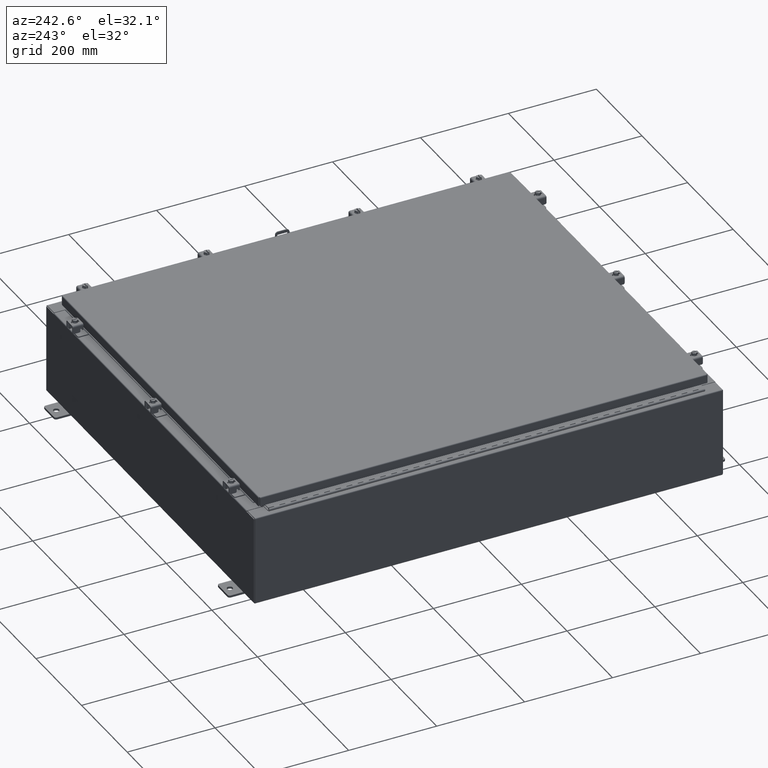
[diagram: clean part render]
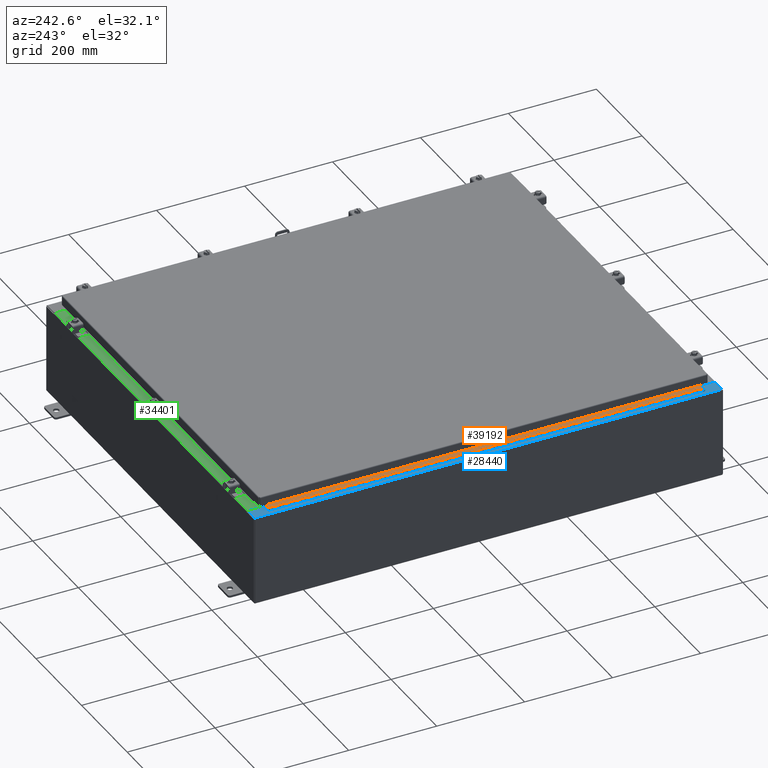
[diagram: same view with three faces highlighted in distinct colors, each labeled with its STEP entity id]
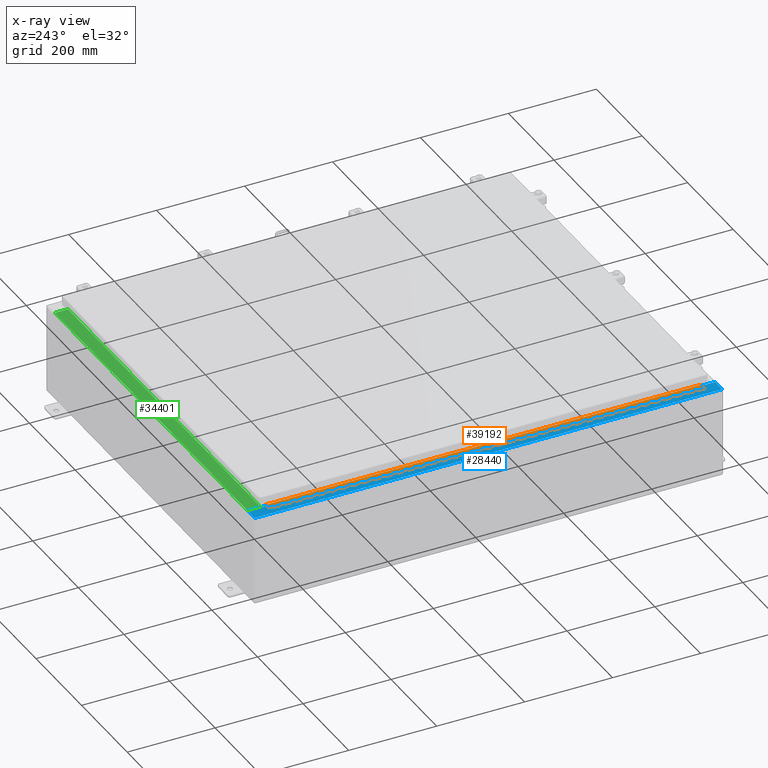
[diagram: x-ray of the same camera — body ghosted, the three highlighted faces saturated]
A machine part, auxiliary view with three faces highlighted in distinct colors.
The next image is the same camera in x-ray (body ghosted, the three faces saturated) — at least one of them is partly hidden behind the body in this view.
Their STEP definitions:

[orange] entity #39192 — the highlighted planar face has unit normal (-0, -0, 1).
#34 = EDGE_CURVE ( 'NONE', #35391, #36768, #49525, .T. ) ;
#49 = LINE ( 'NONE', #24530, #39499 ) ;
#53 = DIRECTION ( 'NONE',  ( -3.389037039080723100E-015, -1.000000000000000000, 0.0000000000000000000 ) ) ;
#109 = ORIENTED_EDGE ( 'NONE', *, *, #21132, .T. ) ;
#139 = ORIENTED_EDGE ( 'NONE', *, *, #34702, .T. ) ;
#238 = ORIENTED_EDGE ( 'NONE', *, *, #42969, .F. ) ;
#274 = VECTOR ( 'NONE', #7039, 39.37007874015748100 ) ;
#322 = EDGE_CURVE ( 'NONE', #15713, #29746, #18449, .T. ) ;
#390 = EDGE_CURVE ( 'NONE', #47332, #19684, #8280, .T. ) ;
#411 = VECTOR ( 'NONE', #9240, 39.37007874015748100 ) ;
#429 = LINE ( 'NONE', #34283, #19569 ) ;
#461 = CARTESIAN_POINT ( 'NONE',  ( -0.6869999999999973900, 0.8004999999999995500, -11.00000000000000000 ) ) ;
#493 = VECTOR ( 'NONE', #5286, 39.37007874015748100 ) ;
#528 = CARTESIAN_POINT ( 'NONE',  ( -0.6869999999999978300, 0.6754999999999996600, -38.50000000000000000 ) ) ;
#580 = VERTEX_POINT ( 'NONE', #31003 ) ;
#646 = VECTOR ( 'NONE', #23505, 39.37007874015748100 ) ;
#678 = LINE ( 'NONE', #3678, #40159 ) ;
#688 = DIRECTION ( 'NONE',  ( -3.389037039080723100E-015, -1.000000000000000000, 0.0000000000000000000 ) ) ;
#747 = CARTESIAN_POINT ( 'NONE',  ( -0.6869999999999982800, 0.5504999999999997700, -9.500000000000000000 ) ) ;
#759 = ORIENTED_EDGE ( 'NONE', *, *, #14648, .F. ) ;
#841 = VECTOR ( 'NONE', #34813, 39.37007874015748100 ) ;
#846 = VECTOR ( 'NONE', #3706, 39.37007874015748100 ) ;
#869 = DIRECTION ( 'NONE',  ( 0.0000000000000000000, 0.0000000000000000000, 1.000000000000000000 ) ) ;
#937 = VERTEX_POINT ( 'NONE', #22014 ) ;
#948 = EDGE_CURVE ( 'NONE', #31716, #35679, #10010, .T. ) ;
#966 = ORIENTED_EDGE ( 'NONE', *, *, #6046, .F. ) ;
#984 = VERTEX_POINT ( 'NONE', #18315 ) ;
#1002 = VERTEX_POINT ( 'NONE', #18475 ) ;
#1164 = LINE ( 'NONE', #8334, #20309 ) ;
#1172 = VECTOR ( 'NONE', #32237, 39.37007874015748100 ) ;
#1189 = CARTESIAN_POINT ( 'NONE',  ( -0.6869999999999973900, 0.8004999999999995500, -24.50000000000000000 ) ) ;
#1262 = EDGE_CURVE ( 'NONE', #32059, #14525, #48827, .T. ) ;
#1290 = CARTESIAN_POINT ( 'NONE',  ( -0.6869999999999982800, 0.5504999999999997700, -2.500000000000000000 ) ) ;
#1325 = CARTESIAN_POINT ( 'NONE',  ( -0.6869999999999982800, 0.5504999999999997700, -39.00000000000000000 ) ) ;
#1338 = DIRECTION ( 'NONE',  ( 0.0000000000000000000, 0.0000000000000000000, 1.000000000000000000 ) ) ;
#1438 = LINE ( 'NONE', #10187, #20585 ) ;
#1468 = VECTOR ( 'NONE', #2627, 39.37007874015748100 ) ;
#1485 = VECTOR ( 'NONE', #22618, 39.37007874015748100 ) ;
#1528 = CARTESIAN_POINT ( 'NONE',  ( -0.6869999999999978300, 0.6754999999999996600, -39.00000000000000000 ) ) ;
#1556 = ORIENTED_EDGE ( 'NONE', *, *, #1819, .T. ) ;
#1595 = LINE ( 'NONE', #32772, #20750 ) ;
#1615 = VECTOR ( 'NONE', #31736, 39.37007874015748100 ) ;
#1652 = VERTEX_POINT ( 'NONE', #39066 ) ;
#1787 = CARTESIAN_POINT ( 'NONE',  ( -0.6869999999999982800, 0.5504999999999997700, -27.50000000000000000 ) ) ;
#1819 = EDGE_CURVE ( 'NONE', #35391, #32572, #42779, .T. ) ;
#1903 = DIRECTION ( 'NONE',  ( 0.0000000000000000000, -0.0000000000000000000, -1.000000000000000000 ) ) ;
#1919 = DIRECTION ( 'NONE',  ( 0.0000000000000000000, -0.0000000000000000000, -1.000000000000000000 ) ) ;
#1940 = LINE ( 'NONE', #24611, #40218 ) ;
#1955 = VERTEX_POINT ( 'NONE', #44723 ) ;
#1964 = CARTESIAN_POINT ( 'NONE',  ( -0.6869999999999973900, 0.8004999999999995500, -17.99999999999999600 ) ) ;
#2037 = LINE ( 'NONE', #30973, #841 ) ;
#2051 = VERTEX_POINT ( 'NONE', #32519 ) ;
#2163 = EDGE_CURVE ( 'NONE', #19684, #21381, #18266, .T. ) ;
#2183 = DIRECTION ( 'NONE',  ( 0.0000000000000000000, 0.0000000000000000000, 1.000000000000000000 ) ) ;
#2192 = FACE_OUTER_BOUND ( 'NONE', #26632, .T. ) ;
#2245 = EDGE_CURVE ( 'NONE', #48860, #3538, #34953, .T. ) ;
#2262 = DIRECTION ( 'NONE',  ( 0.0000000000000000000, -0.0000000000000000000, -1.000000000000000000 ) ) ;
#2271 = ORIENTED_EDGE ( 'NONE', *, *, #29412, .T. ) ;
#2343 = CARTESIAN_POINT ( 'NONE',  ( -0.6869999999999982800, 0.5504999999999997700, -4.000000000000000000 ) ) ;
#2511 = EDGE_CURVE ( 'NONE', #3025, #26699, #31932, .T. ) ;
#2575 = ORIENTED_EDGE ( 'NONE', *, *, #23488, .T. ) ;
#2627 = DIRECTION ( 'NONE',  ( -3.389037039080723100E-015, -1.000000000000000000, 0.0000000000000000000 ) ) ;
#2649 = EDGE_CURVE ( 'NONE', #47014, #36678, #48685, .T. ) ;
#2677 = LINE ( 'NONE', #45475, #1485 ) ;
#2685 = VERTEX_POINT ( 'NONE', #5902 ) ;
#2725 = EDGE_CURVE ( 'NONE', #25993, #34743, #24809, .T. ) ;
#2744 = VERTEX_POINT ( 'NONE', #10883 ) ;
#2803 = DIRECTION ( 'NONE',  ( 0.0000000000000000000, -0.0000000000000000000, -1.000000000000000000 ) ) ;
#2846 = LINE ( 'NONE', #15611, #32113 ) ;
#2910 = DIRECTION ( 'NONE',  ( 3.389037039080723100E-015, 1.000000000000000000, -0.0000000000000000000 ) ) ;
#2927 = LINE ( 'NONE', #13502, #20904 ) ;
#2986 = LINE ( 'NONE', #11072, #13184 ) ;
#3007 = VERTEX_POINT ( 'NONE', #16392 ) ;
#3025 = VERTEX_POINT ( 'NONE', #12523 ) ;
#3101 = CARTESIAN_POINT ( 'NONE',  ( -0.6869999999999982800, 0.5504999999999997700, -13.50000000000000000 ) ) ;
#3108 = CARTESIAN_POINT ( 'NONE',  ( -0.6869999999999982800, 0.5504999999999997700, -27.00000000000000000 ) ) ;
#3184 = CARTESIAN_POINT ( 'NONE',  ( -0.6869999999999982800, 0.5504999999999997700, -14.99999999999999800 ) ) ;
#3216 = CARTESIAN_POINT ( 'NONE',  ( -0.6869999999999978300, 0.6754999999999996600, -17.00000000000000000 ) ) ;
#3258 = CARTESIAN_POINT ( 'NONE',  ( -0.6869999999999973900, 0.8004999999999995500, -27.50000000000000000 ) ) ;
#3262 = VECTOR ( 'NONE', #18499, 39.37007874015748100 ) ;
#3313 = DIRECTION ( 'NONE',  ( 0.0000000000000000000, 0.0000000000000000000, 1.000000000000000000 ) ) ;
#3316 = LINE ( 'NONE', #9560, #32618 ) ;
#3366 = LINE ( 'NONE', #6199, #23742 ) ;
#3391 = CARTESIAN_POINT ( 'NONE',  ( -0.6869999999999982800, 0.5504999999999997700, -37.00000000000000000 ) ) ;
#3408 = VECTOR ( 'NONE', #41329, 39.37007874015748100 ) ;
#3454 = ORIENTED_EDGE ( 'NONE', *, *, #322, .T. ) ;
#3477 = LINE ( 'NONE', #3588, #40576 ) ;
#3482 = CARTESIAN_POINT ( 'NONE',  ( -0.6869999999999973900, 0.8004999999999995500, -25.50000000000000400 ) ) ;
#3493 = CARTESIAN_POINT ( 'NONE',  ( -0.6869999999999978300, 0.6754999999999996600, -39.00000000000000000 ) ) ;
#3496 = LINE ( 'NONE', #34212, #42962 ) ;
#3498 = CARTESIAN_POINT ( 'NONE',  ( -0.6869999999999978300, 0.6754999999999996600, -20.00000000000000000 ) ) ;
#3538 = VERTEX_POINT ( 'NONE', #49415 ) ;
#3571 = EDGE_CURVE ( 'NONE', #26103, #48658, #46614, .T. ) ;
#3585 = ORIENTED_EDGE ( 'NONE', *, *, #3571, .T. ) ;
#3588 = CARTESIAN_POINT ( 'NONE',  ( -0.6869999999999973900, 0.8004999999999995500, -24.99999999999999600 ) ) ;
#3617 = EDGE_CURVE ( 'NONE', #5038, #43559, #16113, .T. ) ;
#3678 = CARTESIAN_POINT ( 'NONE',  ( -0.6869999999999973900, 0.8004999999999995500, -36.50000000000000000 ) ) ;
#3683 = EDGE_CURVE ( 'NONE', #42433, #7476, #1164, .T. ) ;
#3706 = DIRECTION ( 'NONE',  ( 3.389037039080723100E-015, 1.000000000000000000, -0.0000000000000000000 ) ) ;
#3714 = ORIENTED_EDGE ( 'NONE', *, *, #41852, .F. ) ;
#3804 = DIRECTION ( 'NONE',  ( 0.0000000000000000000, -0.0000000000000000000, -1.000000000000000000 ) ) ;
#3855 = CARTESIAN_POINT ( 'NONE',  ( -0.6869999999999973900, 0.8004999999999995500, -34.50000000000000000 ) ) ;
#3891 = EDGE_CURVE ( 'NONE', #28531, #32733, #43615, .T. ) ;
#3931 = EDGE_CURVE ( 'NONE', #11333, #36956, #2927, .T. ) ;
#3943 = CARTESIAN_POINT ( 'NONE',  ( -0.6869999999999998300, 0.07549999999999991400, 0.0000000000000000000 ) ) ;
#3952 = CARTESIAN_POINT ( 'NONE',  ( -0.6869999999999973900, 0.8004999999999995500, -9.500000000000000000 ) ) ;
#4013 = VERTEX_POINT ( 'NONE', #14001 ) ;
#4023 = LINE ( 'NONE', #32301, #33339 ) ;
#4182 = CARTESIAN_POINT ( 'NONE',  ( -0.6869999999999982800, 0.5504999999999997700, -13.50000000000000000 ) ) ;
#4196 = VERTEX_POINT ( 'NONE', #24684 ) ;
#4222 = EDGE_CURVE ( 'NONE', #11036, #14481, #40598, .T. ) ;
#4276 = CARTESIAN_POINT ( 'NONE',  ( -0.6869999999999982800, 0.5504999999999997700, -7.499999999999999100 ) ) ;
#4293 = CARTESIAN_POINT ( 'NONE',  ( -0.6869999999999982800, 0.5504999999999997700, -14.49999999999999800 ) ) ;
#4458 = CARTESIAN_POINT ( 'NONE',  ( -0.6869999999999973900, 0.8004999999999995500, -20.00000000000000000 ) ) ;
#4488 = LINE ( 'NONE', #32722, #42765 ) ;
#4642 = VECTOR ( 'NONE', #48242, 39.37007874015748100 ) ;
#4693 = CARTESIAN_POINT ( 'NONE',  ( -0.6869999999999978300, 0.6754999999999996600, -6.000000000000000900 ) ) ;
#4745 = CARTESIAN_POINT ( 'NONE',  ( -0.6869999999999978300, 0.6754999999999996600, -7.000000000000000000 ) ) ;
#4791 = VERTEX_POINT ( 'NONE', #47513 ) ;
#4816 = CARTESIAN_POINT ( 'NONE',  ( -0.6869999999999982800, 0.5504999999999997700, -3.500000000000000000 ) ) ;
#4823 = CARTESIAN_POINT ( 'NONE',  ( -0.6869999999999978300, 0.6754999999999996600, -28.50000000000000000 ) ) ;
#4824 = CARTESIAN_POINT ( 'NONE',  ( -0.6869999999999973900, 0.8004999999999995500, -6.000000000000000900 ) ) ;
#4885 = LINE ( 'NONE', #40777, #45581 ) ;
#4894 = CARTESIAN_POINT ( 'NONE',  ( -0.6869999999999973900, 0.8004999999999995500, -12.49999999999999800 ) ) ;
#4923 = LINE ( 'NONE', #5819, #24115 ) ;
#4976 = VERTEX_POINT ( 'NONE', #41163 ) ;
#4981 = CARTESIAN_POINT ( 'NONE',  ( -0.6869999999999978300, 0.6754999999999996600, -20.50000000000000400 ) ) ;
#5038 = VERTEX_POINT ( 'NONE', #18596 ) ;
#5055 = EDGE_CURVE ( 'NONE', #35915, #2051, #46474, .T. ) ;
#5064 = VECTOR ( 'NONE', #22563, 39.37007874015748100 ) ;
#5120 = DIRECTION ( 'NONE',  ( 0.0000000000000000000, -0.0000000000000000000, -1.000000000000000000 ) ) ;
#5187 = CARTESIAN_POINT ( 'NONE',  ( -0.6869999999999978300, 0.6754999999999996600, -10.00000000000000000 ) ) ;
#5188 = LINE ( 'NONE', #23786, #34490 ) ;
#5212 = LINE ( 'NONE', #32995, #15407 ) ;
#5261 = VECTOR ( 'NONE', #33503, 39.37007874015748100 ) ;
#5280 = LINE ( 'NONE', #8480, #17877 ) ;
#5281 = ORIENTED_EDGE ( 'NONE', *, *, #2245, .F. ) ;
#5286 = DIRECTION ( 'NONE',  ( 3.389037039080723100E-015, 1.000000000000000000, -0.0000000000000000000 ) ) ;
#5334 = AXIS2_PLACEMENT_3D ( 'NONE', #17741, #48287, #25444 ) ;
#5513 = CARTESIAN_POINT ( 'NONE',  ( -0.6869999999999982800, 0.5504999999999997700, -36.50000000000000000 ) ) ;
#5523 = CARTESIAN_POINT ( 'NONE',  ( -0.6869999999999978300, 0.6754999999999996600, -7.499999999999999100 ) ) ;
#5525 = VECTOR ( 'NONE', #25841, 39.37007874015748100 ) ;
#5589 = DIRECTION ( 'NONE',  ( 0.0000000000000000000, 0.0000000000000000000, 1.000000000000000000 ) ) ;
#5625 = EDGE_CURVE ( 'NONE', #30495, #984, #30255, .T. ) ;
#5699 = VERTEX_POINT ( 'NONE', #7856 ) ;
#5701 = CARTESIAN_POINT ( 'NONE',  ( -0.6869999999999973900, 0.8004999999999995500, -31.00000000000000000 ) ) ;
#5790 = CARTESIAN_POINT ( 'NONE',  ( -0.6869999999999978300, 0.6754999999999996600, -39.00000000000000000 ) ) ;
#5797 = CARTESIAN_POINT ( 'NONE',  ( -0.6869999999999978300, 0.6754999999999996600, -8.500000000000000000 ) ) ;
#5819 = CARTESIAN_POINT ( 'NONE',  ( -0.6869999999999973900, 0.8004999999999995500, -11.50000000000000000 ) ) ;
#5891 = EDGE_CURVE ( 'NONE', #49370, #29478, #39828, .T. ) ;
#5895 = CARTESIAN_POINT ( 'NONE',  ( -0.6869999999999978300, 0.6754999999999996600, -6.499999999999999100 ) ) ;
#5902 = CARTESIAN_POINT ( 'NONE',  ( -0.6869999999999982800, 0.5504999999999997700, -8.500000000000000000 ) ) ;
#5979 = DIRECTION ( 'NONE',  ( 3.389037039080723100E-015, 1.000000000000000000, -0.0000000000000000000 ) ) ;
#6046 = EDGE_CURVE ( 'NONE', #4791, #11390, #41596, .T. ) ;
#6129 = LINE ( 'NONE', #30545, #45593 ) ;
#6152 = CARTESIAN_POINT ( 'NONE',  ( -0.6869999999999982800, 0.5504999999999997700, -12.49999999999999800 ) ) ;
#6180 = LINE ( 'NONE', #45134, #28887 ) ;
#6199 = CARTESIAN_POINT ( 'NONE',  ( -0.6869999999999973900, 0.8004999999999995500, -19.50000000000000000 ) ) ;
#6297 = DIRECTION ( 'NONE',  ( 3.389037039080723100E-015, 1.000000000000000000, -0.0000000000000000000 ) ) ;
#6352 = CARTESIAN_POINT ( 'NONE',  ( -0.6869999999999973900, 0.8004999999999995500, -34.00000000000000000 ) ) ;
#6381 = VECTOR ( 'NONE', #3313, 39.37007874015748100 ) ;
#6414 = EDGE_CURVE ( 'NONE', #41753, #31716, #47534, .T. ) ;
#6437 = EDGE_CURVE ( 'NONE', #4196, #17128, #46345, .T. ) ;
#6560 = ORIENTED_EDGE ( 'NONE', *, *, #28358, .F. ) ;
#6567 = VECTOR ( 'NONE', #2183, 39.37007874015748100 ) ;
#6591 = EDGE_CURVE ( 'NONE', #35915, #580, #21250, .T. ) ;
#6621 = VECTOR ( 'NONE', #37174, 39.37007874015748100 ) ;
#6623 = VECTOR ( 'NONE', #869, 39.37007874015748100 ) ;
#6631 = EDGE_CURVE ( 'NONE', #4013, #41295, #7466, .T. ) ;
#6652 = CARTESIAN_POINT ( 'NONE',  ( -0.6869999999999982800, 0.5504999999999997700, -32.00000000000000000 ) ) ;
#6662 = EDGE_CURVE ( 'NONE', #15569, #28453, #16442, .T. ) ;
#6771 = EDGE_CURVE ( 'NONE', #48667, #43559, #33154, .T. ) ;
#6791 = EDGE_CURVE ( 'NONE', #15713, #47014, #11615, .T. ) ;
#6798 = VECTOR ( 'NONE', #48765, 39.37007874015748100 ) ;
#6813 = ORIENTED_EDGE ( 'NONE', *, *, #33291, .F. ) ;
#6833 = ORIENTED_EDGE ( 'NONE', *, *, #43280, .T. ) ;
#6836 = CARTESIAN_POINT ( 'NONE',  ( -0.6869999999999973900, 0.8004999999999995500, -4.500000000000000000 ) ) ;
#6867 = EDGE_CURVE ( 'NONE', #34234, #18901, #8041, .T. ) ;
#6995 = VECTOR ( 'NONE', #12575, 39.37007874015748100 ) ;
#6998 = CARTESIAN_POINT ( 'NONE',  ( -0.6869999999999973900, 0.8004999999999995500, -10.00000000000000000 ) ) ;
#7039 = DIRECTION ( 'NONE',  ( -3.389037039080723100E-015, -1.000000000000000000, 0.0000000000000000000 ) ) ;
#7049 = CARTESIAN_POINT ( 'NONE',  ( -0.6869999999999978300, 0.6754999999999996600, -28.99999999999999600 ) ) ;
#7074 = CARTESIAN_POINT ( 'NONE',  ( -0.6869999999999978300, 0.6754999999999996600, -1.499999999999999800 ) ) ;
#7101 = CARTESIAN_POINT ( 'NONE',  ( -0.6869999999999982800, 0.5504999999999997700, -1.000000000000000000 ) ) ;
#7187 = CARTESIAN_POINT ( 'NONE',  ( -0.6869999999999978300, 0.6754999999999996600, -39.00000000000000000 ) ) ;
#7224 = ORIENTED_EDGE ( 'NONE', *, *, #12358, .F. ) ;
#7229 = VECTOR ( 'NONE', #2803, 39.37007874015748100 ) ;
#7247 = CARTESIAN_POINT ( 'NONE',  ( -0.6869999999999978300, 0.6754999999999996600, -9.000000000000000000 ) ) ;
#7252 = VECTOR ( 'NONE', #31557, 39.37007874015748100 ) ;
#7276 = VERTEX_POINT ( 'NONE', #5797 ) ;
#7384 = EDGE_CURVE ( 'NONE', #937, #18055, #46232, .T. ) ;
#7399 = ORIENTED_EDGE ( 'NONE', *, *, #13204, .F. ) ;
#7456 = CARTESIAN_POINT ( 'NONE',  ( -0.6869999999999978300, 0.6754999999999996600, -34.00000000000000000 ) ) ;
#7466 = LINE ( 'NONE', #9511, #17642 ) ;
#7476 = VERTEX_POINT ( 'NONE', #18498 ) ;
#7477 = ORIENTED_EDGE ( 'NONE', *, *, #36417, .F. ) ;
#7523 = VECTOR ( 'NONE', #48453, 39.37007874015748100 ) ;
#7545 = EDGE_CURVE ( 'NONE', #1002, #15499, #31256, .T. ) ;
#7574 = DIRECTION ( 'NONE',  ( -3.389037039080723100E-015, -1.000000000000000000, 0.0000000000000000000 ) ) ;
#7598 = VERTEX_POINT ( 'NONE', #43607 ) ;
#7601 = CARTESIAN_POINT ( 'NONE',  ( -0.6869999999999978300, 0.6754999999999996600, -39.00000000000000000 ) ) ;
#7622 = VECTOR ( 'NONE', #39362, 39.37007874015748100 ) ;
#7655 = EDGE_CURVE ( 'NONE', #32835, #23485, #4923, .T. ) ;
#7744 = EDGE_CURVE ( 'NONE', #30667, #22679, #11526, .T. ) ;
#7784 = ORIENTED_EDGE ( 'NONE', *, *, #35724, .F. ) ;
#7816 = VERTEX_POINT ( 'NONE', #22404 ) ;
#7815 = CARTESIAN_POINT ( 'NONE',  ( -0.6869999999999982800, 0.5504999999999997700, -23.50000000000000000 ) ) ;
#7856 = CARTESIAN_POINT ( 'NONE',  ( -0.6869999999999978300, 0.6754999999999996600, -22.00000000000000000 ) ) ;
#7905 = VECTOR ( 'NONE', #15188, 39.37007874015748100 ) ;
#7935 = LINE ( 'NONE', #46060, #48570 ) ;
#7941 = DIRECTION ( 'NONE',  ( -3.389037039080723100E-015, -1.000000000000000000, 0.0000000000000000000 ) ) ;
#8041 = LINE ( 'NONE', #29884, #274 ) ;
#8063 = VERTEX_POINT ( 'NONE', #15990 ) ;
#8089 = VECTOR ( 'NONE', #37067, 39.37007874015748100 ) ;
#8129 = CARTESIAN_POINT ( 'NONE',  ( -0.6869999999999973900, 0.8004999999999995500, -17.00000000000000000 ) ) ;
#8209 = EDGE_CURVE ( 'NONE', #46822, #15098, #26451, .T. ) ;
#8232 = VERTEX_POINT ( 'NONE', #21010 ) ;
#8277 = VERTEX_POINT ( 'NONE', #28828 ) ;
#8280 = LINE ( 'NONE', #6152, #4642 ) ;
#8288 = EDGE_CURVE ( 'NONE', #2685, #7816, #11478, .T. ) ;
#8334 = CARTESIAN_POINT ( 'NONE',  ( -0.6869999999999982800, 0.5504999999999997700, -35.50000000000000000 ) ) ;
#8401 = CARTESIAN_POINT ( 'NONE',  ( -0.6869999999999978300, 0.6754999999999996600, -39.00000000000000000 ) ) ;
#8440 = VECTOR ( 'NONE', #38218, 39.37007874015748100 ) ;
#8444 = LINE ( 'NONE', #12535, #7252 ) ;
#8467 = DIRECTION ( 'NONE',  ( -3.389037039080723100E-015, -1.000000000000000000, 0.0000000000000000000 ) ) ;
#8480 = CARTESIAN_POINT ( 'NONE',  ( -0.6869999999999982800, 0.5504999999999997700, -15.50000000000000000 ) ) ;
#8591 = CARTESIAN_POINT ( 'NONE',  ( -0.6869999999999973900, 0.8004999999999995500, -28.99999999999999600 ) ) ;
#8684 = ORIENTED_EDGE ( 'NONE', *, *, #39219, .T. ) ;
#8718 = DIRECTION ( 'NONE',  ( 3.389037039080723100E-015, 1.000000000000000000, -0.0000000000000000000 ) ) ;
#8720 = LINE ( 'NONE', #36964, #7523 ) ;
#8725 = VECTOR ( 'NONE', #14615, 39.37007874015748100 ) ;
#8827 = ORIENTED_EDGE ( 'NONE', *, *, #6631, .T. ) ;
#8879 = CARTESIAN_POINT ( 'NONE',  ( -0.6869999999999973900, 0.8004999999999995500, -0.5000000000000000000 ) ) ;
#9075 = ORIENTED_EDGE ( 'NONE', *, *, #18203, .F. ) ;
#9081 = ORIENTED_EDGE ( 'NONE', *, *, #32508, .T. ) ;
#9099 = EDGE_CURVE ( 'NONE', #1652, #11333, #46664, .T. ) ;
#9160 = ORIENTED_EDGE ( 'NONE', *, *, #32744, .F. ) ;
#9240 = DIRECTION ( 'NONE',  ( -3.389037039080723100E-015, -1.000000000000000000, 0.0000000000000000000 ) ) ;
#9447 = DIRECTION ( 'NONE',  ( -3.389037039080723100E-015, -1.000000000000000000, 0.0000000000000000000 ) ) ;
#9511 = CARTESIAN_POINT ( 'NONE',  ( -0.6869999999999978300, 0.6754999999999996600, -39.00000000000000000 ) ) ;
#9560 = CARTESIAN_POINT ( 'NONE',  ( -0.6869999999999982800, 0.5504999999999997700, -37.50000000000000000 ) ) ;
#9606 = CARTESIAN_POINT ( 'NONE',  ( -0.6869999999999978300, 0.6754999999999996600, -36.00000000000000000 ) ) ;
#9678 = LINE ( 'NONE', #43433, #38964 ) ;
#9709 = DIRECTION ( 'NONE',  ( 0.0000000000000000000, 0.0000000000000000000, 1.000000000000000000 ) ) ;
#9743 = VECTOR ( 'NONE', #21059, 39.37007874015748100 ) ;
#9753 = EDGE_CURVE ( 'NONE', #5038, #1002, #37725, .T. ) ;
#9756 = CARTESIAN_POINT ( 'NONE',  ( -0.6869999999999978300, 0.6754999999999996600, -21.50000000000000400 ) ) ;
#9812 = LINE ( 'NONE', #8879, #19964 ) ;
#9848 = CARTESIAN_POINT ( 'NONE',  ( -0.6869999999999978300, 0.6754999999999996600, -39.00000000000000000 ) ) ;
#9868 = VECTOR ( 'NONE', #47085, 39.37007874015748100 ) ;
#9968 = VECTOR ( 'NONE', #13084, 39.37007874015748100 ) ;
#9969 = CARTESIAN_POINT ( 'NONE',  ( -0.6869999999999973900, 0.8004999999999995500, -5.000000000000000000 ) ) ;
#9980 = EDGE_CURVE ( 'NONE', #35586, #20589, #17983, .T. ) ;
#9982 = EDGE_CURVE ( 'NONE', #7276, #4976, #26932, .T. ) ;
#9992 = CARTESIAN_POINT ( 'NONE',  ( -0.6869999999999982800, 0.5504999999999997700, -0.5000000000000000000 ) ) ;
#10010 = LINE ( 'NONE', #37196, #39296 ) ;
#10013 = VECTOR ( 'NONE', #53, 39.37007874015748100 ) ;
#10104 = VECTOR ( 'NONE', #1919, 39.37007874015748100 ) ;
#10121 = CARTESIAN_POINT ( 'NONE',  ( -0.6869999999999982800, 0.5504999999999997700, -37.50000000000000000 ) ) ;
#10163 = CARTESIAN_POINT ( 'NONE',  ( -0.6869999999999973900, 0.8004999999999995500, -16.00000000000000000 ) ) ;
#10187 = CARTESIAN_POINT ( 'NONE',  ( -0.6869999999999982800, 0.5504999999999997700, -1.499999999999999800 ) ) ;
#10195 = VECTOR ( 'NONE', #11555, 39.37007874015748100 ) ;
#10284 = LINE ( 'NONE', #17201, #19242 ) ;
#10314 = DIRECTION ( 'NONE',  ( 0.0000000000000000000, -0.0000000000000000000, -1.000000000000000000 ) ) ;
#10357 = DIRECTION ( 'NONE',  ( -3.389037039080723100E-015, -1.000000000000000000, 0.0000000000000000000 ) ) ;
#10445 = VERTEX_POINT ( 'NONE', #27571 ) ;
#10465 = VERTEX_POINT ( 'NONE', #4981 ) ;
#10474 = VERTEX_POINT ( 'NONE', #39429 ) ;
#10520 = VECTOR ( 'NONE', #1338, 39.37007874015748100 ) ;
#10588 = LINE ( 'NONE', #9848, #20779 ) ;
#10589 = CARTESIAN_POINT ( 'NONE',  ( -0.6869999999999978300, 0.6754999999999996600, -39.00000000000000000 ) ) ;
#10602 = CARTESIAN_POINT ( 'NONE',  ( -0.6869999999999982800, 0.5504999999999997700, -29.99999999999999600 ) ) ;
#10622 = CARTESIAN_POINT ( 'NONE',  ( -0.6869999999999982800, 0.5504999999999997700, -38.50000000000000000 ) ) ;
#10677 = CARTESIAN_POINT ( 'NONE',  ( -0.6869999999999978300, 0.6754999999999996600, -39.00000000000000000 ) ) ;
#10684 = ORIENTED_EDGE ( 'NONE', *, *, #19387, .T. ) ;
#10713 = DIRECTION ( 'NONE',  ( -3.389037039080723100E-015, -1.000000000000000000, 0.0000000000000000000 ) ) ;
#10779 = VERTEX_POINT ( 'NONE', #10979 ) ;
#10838 = CARTESIAN_POINT ( 'NONE',  ( -0.6869999999999982800, 0.5504999999999997700, -5.000000000000000000 ) ) ;
#10883 = CARTESIAN_POINT ( 'NONE',  ( -0.6869999999999978300, 0.6754999999999996600, -31.00000000000000000 ) ) ;
#10886 = VERTEX_POINT ( 'NONE', #45739 ) ;
#10900 = CARTESIAN_POINT ( 'NONE',  ( -0.6869999999999973900, 0.8004999999999995500, -37.00000000000000000 ) ) ;
#10902 = VECTOR ( 'NONE', #13065, 39.37007874015748100 ) ;
#10979 = CARTESIAN_POINT ( 'NONE',  ( -0.6869999999999982800, 0.5504999999999997700, -18.50000000000000000 ) ) ;
#11001 = VERTEX_POINT ( 'NONE', #4745 ) ;
#11005 = LINE ( 'NONE', #30448, #846 ) ;
#11036 = VERTEX_POINT ( 'NONE', #43206 ) ;
#11072 = CARTESIAN_POINT ( 'NONE',  ( -0.6869999999999978300, 0.6754999999999996600, -39.00000000000000000 ) ) ;
#11132 = CARTESIAN_POINT ( 'NONE',  ( -0.6869999999999973900, 0.8004999999999995500, -2.000000000000000000 ) ) ;
#11140 = DIRECTION ( 'NONE',  ( 3.389037039080723100E-015, 1.000000000000000000, -0.0000000000000000000 ) ) ;
#11146 = CARTESIAN_POINT ( 'NONE',  ( -0.6869999999999978300, 0.6754999999999996600, -11.99999999999999800 ) ) ;
#11254 = VERTEX_POINT ( 'NONE', #10121 ) ;
#11323 = LINE ( 'NONE', #5513, #1172 ) ;
#11331 = DIRECTION ( 'NONE',  ( 3.369016658928398200E-015, 1.000000000000000000, 0.0000000000000000000 ) ) ;
#11333 = VERTEX_POINT ( 'NONE', #10602 ) ;
#11363 = ORIENTED_EDGE ( 'NONE', *, *, #40671, .F. ) ;
#11377 = VECTOR ( 'NONE', #20201, 39.37007874015748100 ) ;
#11390 = VERTEX_POINT ( 'NONE', #7101 ) ;
#11478 = LINE ( 'NONE', #21360, #20471 ) ;
#11497 = LINE ( 'NONE', #7601, #20489 ) ;
#11526 = LINE ( 'NONE', #18373, #30644 ) ;
#11552 = ORIENTED_EDGE ( 'NONE', *, *, #43491, .F. ) ;
#11555 = DIRECTION ( 'NONE',  ( 3.389037039080723100E-015, 1.000000000000000000, -0.0000000000000000000 ) ) ;
#11563 = VERTEX_POINT ( 'NONE', #26958 ) ;
#11614 = CARTESIAN_POINT ( 'NONE',  ( -0.6869999999999982800, 0.5504999999999997700, -1.499999999999999800 ) ) ;
#11615 = LINE ( 'NONE', #44568, #1468 ) ;
#11654 = VERTEX_POINT ( 'NONE', #4693 ) ;
#11668 = DIRECTION ( 'NONE',  ( 0.0000000000000000000, -0.0000000000000000000, -1.000000000000000000 ) ) ;
#11675 = DIRECTION ( 'NONE',  ( 3.389037039080723100E-015, 1.000000000000000000, -0.0000000000000000000 ) ) ;
#11694 = EDGE_CURVE ( 'NONE', #17010, #35859, #25529, .T. ) ;
#11700 = LINE ( 'NONE', #24257, #10520 ) ;
#11818 = DIRECTION ( 'NONE',  ( 0.0000000000000000000, -0.0000000000000000000, -1.000000000000000000 ) ) ;
#11902 = VERTEX_POINT ( 'NONE', #35938 ) ;
#11953 = EDGE_CURVE ( 'NONE', #11254, #4196, #3316, .T. ) ;
#11965 = ORIENTED_EDGE ( 'NONE', *, *, #34527, .F. ) ;
#12002 = DIRECTION ( 'NONE',  ( -3.389037039080723100E-015, -1.000000000000000000, 0.0000000000000000000 ) ) ;
#12014 = ORIENTED_EDGE ( 'NONE', *, *, #39174, .F. ) ;
#12063 = EDGE_CURVE ( 'NONE', #20090, #35586, #8720, .T. ) ;
#12091 = LINE ( 'NONE', #47417, #41411 ) ;
#12096 = CARTESIAN_POINT ( 'NONE',  ( -0.6869999999999978300, 0.6754999999999996600, -39.00000000000000000 ) ) ;
#12118 = CARTESIAN_POINT ( 'NONE',  ( -0.6869999999999973900, 0.8004999999999995500, -7.499999999999999100 ) ) ;
#12148 = DIRECTION ( 'NONE',  ( 0.0000000000000000000, -0.0000000000000000000, -1.000000000000000000 ) ) ;
#12171 = ORIENTED_EDGE ( 'NONE', *, *, #38920, .F. ) ;
#12284 = CARTESIAN_POINT ( 'NONE',  ( -0.6869999999999982800, 0.5504999999999997700, -31.00000000000000000 ) ) ;
#12286 = VECTOR ( 'NONE', #36382, 39.37007874015748100 ) ;
#12319 = EDGE_CURVE ( 'NONE', #13959, #15228, #29599, .T. ) ;
#12358 = EDGE_CURVE ( 'NONE', #7476, #29197, #27225, .T. ) ;
#12438 = ORIENTED_EDGE ( 'NONE', *, *, #38701, .F. ) ;
#12523 = CARTESIAN_POINT ( 'NONE',  ( -0.6869999999999982800, 0.5504999999999997700, -4.500000000000000000 ) ) ;
#12535 = CARTESIAN_POINT ( 'NONE',  ( -0.6869999999999982800, 0.5504999999999997700, -28.50000000000000000 ) ) ;
#12555 = ORIENTED_EDGE ( 'NONE', *, *, #2163, .F. ) ;
#12575 = DIRECTION ( 'NONE',  ( 3.389037039080723100E-015, 1.000000000000000000, -0.0000000000000000000 ) ) ;
#12579 = CARTESIAN_POINT ( 'NONE',  ( -0.6869999999999973900, 0.8004999999999995500, -23.50000000000000000 ) ) ;
#12644 = VECTOR ( 'NONE', #39420, 39.37007874015748100 ) ;
#12688 = CARTESIAN_POINT ( 'NONE',  ( -0.6869999999999973900, 0.8004999999999995500, -32.00000000000000000 ) ) ;
#12724 = ORIENTED_EDGE ( 'NONE', *, *, #45037, .F. ) ;
#12769 = ORIENTED_EDGE ( 'NONE', *, *, #41065, .F. ) ;
#12785 = EDGE_CURVE ( 'NONE', #26314, #37960, #17030, .T. ) ;
#12863 = CARTESIAN_POINT ( 'NONE',  ( -0.6869999999999982800, 0.5504999999999997700, -16.00000000000000000 ) ) ;
#12872 = ORIENTED_EDGE ( 'NONE', *, *, #19061, .F. ) ;
#12902 = VERTEX_POINT ( 'NONE', #11614 ) ;
#12933 = VECTOR ( 'NONE', #11668, 39.37007874015748100 ) ;
#12949 = ORIENTED_EDGE ( 'NONE', *, *, #9982, .T. ) ;
#12955 = EDGE_CURVE ( 'NONE', #22345, #8277, #2037, .T. ) ;
#13065 = DIRECTION ( 'NONE',  ( 0.0000000000000000000, 0.0000000000000000000, 1.000000000000000000 ) ) ;
#13084 = DIRECTION ( 'NONE',  ( 0.0000000000000000000, 0.0000000000000000000, 1.000000000000000000 ) ) ;
#13120 = VECTOR ( 'NONE', #13335, 39.37007874015748100 ) ;
#13182 = ORIENTED_EDGE ( 'NONE', *, *, #29836, .T. ) ;
#13184 = VECTOR ( 'NONE', #37808, 39.37007874015748100 ) ;
#13204 = EDGE_CURVE ( 'NONE', #1955, #33170, #21795, .T. ) ;
#13285 = CARTESIAN_POINT ( 'NONE',  ( -0.6869999999999973900, 0.8004999999999995500, -32.50000000000000000 ) ) ;
#13335 = DIRECTION ( 'NONE',  ( 0.0000000000000000000, 0.0000000000000000000, 1.000000000000000000 ) ) ;
#13390 = LINE ( 'NONE', #17595, #42644 ) ;
#13407 = VECTOR ( 'NONE', #32411, 39.37007874015748100 ) ;
#13450 = LINE ( 'NONE', #47209, #22441 ) ;
#13474 = VERTEX_POINT ( 'NONE', #23470 ) ;
#13475 = CARTESIAN_POINT ( 'NONE',  ( -0.6869999999999982800, 0.5504999999999997700, -17.50000000000000000 ) ) ;
#13502 = CARTESIAN_POINT ( 'NONE',  ( -0.6869999999999973900, 0.8004999999999995500, -29.99999999999999600 ) ) ;
#13590 = ORIENTED_EDGE ( 'NONE', *, *, #19592, .F. ) ;
#13844 = CARTESIAN_POINT ( 'NONE',  ( -0.6869999999999982800, 0.5504999999999997700, -28.99999999999999600 ) ) ;
#13897 = PLANE ( 'NONE',  #5334 ) ;
#13904 = VECTOR ( 'NONE', #17012, 39.37007874015748100 ) ;
#13945 = EDGE_CURVE ( 'NONE', #47778, #48370, #19881, .T. ) ;
#13959 = VERTEX_POINT ( 'NONE', #37937 ) ;
#13971 = VECTOR ( 'NONE', #15822, 39.37007874015748100 ) ;
#14001 = CARTESIAN_POINT ( 'NONE',  ( -0.6869999999999978300, 0.6754999999999996600, -3.500000000000000000 ) ) ;
#14014 = LINE ( 'NONE', #38981, #43286 ) ;
#14035 = VECTOR ( 'NONE', #41537, 39.37007874015748100 ) ;
#14042 = VERTEX_POINT ( 'NONE', #42100 ) ;
#14047 = VECTOR ( 'NONE', #33028, 39.37007874015748100 ) ;
#14188 = CARTESIAN_POINT ( 'NONE',  ( -0.6869999999999978300, 0.6754999999999996600, -25.50000000000000400 ) ) ;
#14210 = ORIENTED_EDGE ( 'NONE', *, *, #15870, .F. ) ;
#14268 = LINE ( 'NONE', #8129, #35764 ) ;
#14412 = VECTOR ( 'NONE', #49082, 39.37007874015748100 ) ;
#14428 = CARTESIAN_POINT ( 'NONE',  ( -0.6869999999999982800, 0.5504999999999997700, -24.99999999999999600 ) ) ;
#14481 = VERTEX_POINT ( 'NONE', #6652 ) ;
#14525 = VERTEX_POINT ( 'NONE', #7049 ) ;
#14528 = DIRECTION ( 'NONE',  ( -3.389037039080723100E-015, -1.000000000000000000, 0.0000000000000000000 ) ) ;
#14591 = CARTESIAN_POINT ( 'NONE',  ( -0.6869999999999982800, 0.5504999999999997700, -35.00000000000000000 ) ) ;
#14615 = DIRECTION ( 'NONE',  ( 0.0000000000000000000, 0.0000000000000000000, 1.000000000000000000 ) ) ;
#14644 = VERTEX_POINT ( 'NONE', #15379 ) ;
#14648 = EDGE_CURVE ( 'NONE', #580, #48944, #6129, .T. ) ;
#14874 = ORIENTED_EDGE ( 'NONE', *, *, #6867, .F. ) ;
#14919 = CARTESIAN_POINT ( 'NONE',  ( -0.6869999999999978300, 0.6754999999999996600, -39.00000000000000000 ) ) ;
#14935 = DIRECTION ( 'NONE',  ( -3.389037039080723100E-015, -1.000000000000000000, 0.0000000000000000000 ) ) ;
#15021 = ORIENTED_EDGE ( 'NONE', *, *, #12785, .T. ) ;
#15024 = ORIENTED_EDGE ( 'NONE', *, *, #48947, .F. ) ;
#15098 = VERTEX_POINT ( 'NONE', #40910 ) ;
#15188 = DIRECTION ( 'NONE',  ( -3.389037039080723100E-015, -1.000000000000000000, 0.0000000000000000000 ) ) ;
#15189 = VERTEX_POINT ( 'NONE', #41550 ) ;
#15198 = CARTESIAN_POINT ( 'NONE',  ( -0.6870000000000022800, -0.6245000000000003900, -39.00000000000000000 ) ) ;
#15222 = EDGE_CURVE ( 'NONE', #22395, #46880, #34168, .T. ) ;
#15225 = ORIENTED_EDGE ( 'NONE', *, *, #39716, .T. ) ;
#15228 = VERTEX_POINT ( 'NONE', #22697 ) ;
#15259 = DIRECTION ( 'NONE',  ( 0.0000000000000000000, -0.0000000000000000000, -1.000000000000000000 ) ) ;
#15277 = VECTOR ( 'NONE', #5120, 39.37007874015748100 ) ;
#15330 = LINE ( 'NONE', #26884, #12933 ) ;
#15354 = VECTOR ( 'NONE', #35963, 39.37007874015748100 ) ;
#15379 = CARTESIAN_POINT ( 'NONE',  ( -0.6869999999999978300, 0.6754999999999996600, -29.50000000000000000 ) ) ;
#15407 = VECTOR ( 'NONE', #6297, 39.37007874015748100 ) ;
#15439 = ORIENTED_EDGE ( 'NONE', *, *, #6662, .F. ) ;
#15440 = CARTESIAN_POINT ( 'NONE',  ( -0.6869999999999978300, 0.6754999999999996600, -11.50000000000000000 ) ) ;
#15469 = LINE ( 'NONE', #1787, #43572 ) ;
#15488 = ORIENTED_EDGE ( 'NONE', *, *, #20025, .F. ) ;
#15499 = VERTEX_POINT ( 'NONE', #47020 ) ;
#15569 = VERTEX_POINT ( 'NONE', #28315 ) ;
#15611 = CARTESIAN_POINT ( 'NONE',  ( -0.6869999999999982800, 0.5504999999999997700, -11.50000000000000000 ) ) ;
#15674 = CARTESIAN_POINT ( 'NONE',  ( -0.6869999999999978300, 0.6754999999999996600, -26.50000000000000400 ) ) ;
#15713 = VERTEX_POINT ( 'NONE', #44345 ) ;
#15734 = VERTEX_POINT ( 'NONE', #32798 ) ;
#15772 = ORIENTED_EDGE ( 'NONE', *, *, #5055, .T. ) ;
#15806 = EDGE_CURVE ( 'NONE', #42517, #28453, #30507, .T. ) ;
#15822 = DIRECTION ( 'NONE',  ( 3.389037039080723100E-015, 1.000000000000000000, -0.0000000000000000000 ) ) ;
#15844 = VECTOR ( 'NONE', #42576, 39.37007874015748100 ) ;
#15870 = EDGE_CURVE ( 'NONE', #42321, #11563, #19181, .T. ) ;
#15883 = ORIENTED_EDGE ( 'NONE', *, *, #32910, .T. ) ;
#15990 = CARTESIAN_POINT ( 'NONE',  ( -0.6869999999999982800, 0.5504999999999997700, -15.50000000000000000 ) ) ;
#16008 = VECTOR ( 'NONE', #19514, 39.37007874015748100 ) ;
#16070 = DIRECTION ( 'NONE',  ( 0.0000000000000000000, -0.0000000000000000000, -1.000000000000000000 ) ) ;
#16113 = LINE ( 'NONE', #23068, #32839 ) ;
#16215 = ORIENTED_EDGE ( 'NONE', *, *, #20235, .F. ) ;
#16365 = CARTESIAN_POINT ( 'NONE',  ( -0.6869999999999978300, 0.6754999999999996600, -35.50000000000000000 ) ) ;
#16392 = CARTESIAN_POINT ( 'NONE',  ( -0.6869999999999982800, 0.5504999999999997700, -2.500000000000000000 ) ) ;
#16442 = LINE ( 'NONE', #1964, #46907 ) ;
#16468 = CARTESIAN_POINT ( 'NONE',  ( -0.6869999999999982800, 0.5504999999999997700, -4.500000000000000000 ) ) ;
#16475 = DIRECTION ( 'NONE',  ( -3.389037039080723100E-015, -1.000000000000000000, 0.0000000000000000000 ) ) ;
#16487 = CARTESIAN_POINT ( 'NONE',  ( -0.6869999999999973900, 0.8004999999999995500, -26.00000000000000000 ) ) ;
#16624 = CARTESIAN_POINT ( 'NONE',  ( -0.6869999999999978300, 0.6754999999999996600, -2.500000000000000000 ) ) ;
#16737 = VECTOR ( 'NONE', #21427, 39.37007874015748100 ) ;
#16765 = CARTESIAN_POINT ( 'NONE',  ( -0.6869999999999998300, 0.07549999999999991400, -39.00000000000000000 ) ) ;
#16788 = LINE ( 'NONE', #32962, #6621 ) ;
#16820 = CARTESIAN_POINT ( 'NONE',  ( -0.6869999999999978300, 0.6754999999999996600, -27.00000000000000000 ) ) ;
#16836 = ORIENTED_EDGE ( 'NONE', *, *, #17347, .T. ) ;
#16963 = VECTOR ( 'NONE', #34454, 39.37007874015748100 ) ;
#16975 = LINE ( 'NONE', #10677, #6798 ) ;
#17009 = DIRECTION ( 'NONE',  ( 3.389037039080723100E-015, 1.000000000000000000, -0.0000000000000000000 ) ) ;
#17010 = VERTEX_POINT ( 'NONE', #3101 ) ;
#17012 = DIRECTION ( 'NONE',  ( 0.0000000000000000000, -0.0000000000000000000, -1.000000000000000000 ) ) ;
#17020 = CARTESIAN_POINT ( 'NONE',  ( -0.6869999999999982800, 0.5504999999999997700, -28.50000000000000000 ) ) ;
#17030 = LINE ( 'NONE', #18659, #37354 ) ;
#17056 = EDGE_CURVE ( 'NONE', #24625, #8232, #3477, .T. ) ;
#17073 = VECTOR ( 'NONE', #46274, 39.37007874015748100 ) ;
#17083 = VECTOR ( 'NONE', #31029, 39.37007874015748100 ) ;
#17128 = VERTEX_POINT ( 'NONE', #42197 ) ;
#17168 = EDGE_CURVE ( 'NONE', #15499, #40507, #14268, .T. ) ;
#17201 = CARTESIAN_POINT ( 'NONE',  ( -0.6869999999999978300, 0.6754999999999996600, -39.00000000000000000 ) ) ;
#17249 = VECTOR ( 'NONE', #5589, 39.37007874015748100 ) ;
#17337 = LINE ( 'NONE', #34632, #47807 ) ;
#17347 = EDGE_CURVE ( 'NONE', #24395, #46880, #27389, .T. ) ;
#17390 = EDGE_CURVE ( 'NONE', #36678, #34954, #38725, .T. ) ;
#17401 = LINE ( 'NONE', #34719, #36508 ) ;
#17411 = VERTEX_POINT ( 'NONE', #42551 ) ;
#17418 = VECTOR ( 'NONE', #41335, 39.37007874015748100 ) ;
#17524 = ORIENTED_EDGE ( 'NONE', *, *, #7384, .F. ) ;
#17559 = VECTOR ( 'NONE', #8467, 39.37007874015748100 ) ;
#17595 = CARTESIAN_POINT ( 'NONE',  ( -0.6869999999999973900, 0.8004999999999995500, -35.50000000000000000 ) ) ;
#17642 = VECTOR ( 'NONE', #36232, 39.37007874015748100 ) ;
#17678 = EDGE_CURVE ( 'NONE', #22189, #41295, #5212, .T. ) ;
#17704 = CARTESIAN_POINT ( 'NONE',  ( -0.6869999999999973900, 0.8004999999999995500, -35.00000000000000000 ) ) ;
#17732 = ORIENTED_EDGE ( 'NONE', *, *, #7744, .F. ) ;
#17741 = CARTESIAN_POINT ( 'NONE',  ( -0.6870000000000022800, -0.6245000000000003900, -39.00000000000000000 ) ) ;
#17868 = CARTESIAN_POINT ( 'NONE',  ( -0.6869999999999978300, 0.6754999999999996600, -39.00000000000000000 ) ) ;
#17877 = VECTOR ( 'NONE', #35194, 39.37007874015748100 ) ;
#17896 = DIRECTION ( 'NONE',  ( 0.0000000000000000000, 0.0000000000000000000, 1.000000000000000000 ) ) ;
#17983 = LINE ( 'NONE', #46648, #48450 ) ;
#18055 = VERTEX_POINT ( 'NONE', #43339 ) ;
#18064 = CARTESIAN_POINT ( 'NONE',  ( -0.6869999999999978300, 0.6754999999999996600, -39.00000000000000000 ) ) ;
#18088 = EDGE_CURVE ( 'NONE', #11390, #25492, #36894, .T. ) ;
#18203 = EDGE_CURVE ( 'NONE', #19732, #11036, #1595, .T. ) ;
#18210 = VERTEX_POINT ( 'NONE', #48160 ) ;
#18266 = LINE ( 'NONE', #29347, #8089 ) ;
#18276 = ORIENTED_EDGE ( 'NONE', *, *, #22666, .T. ) ;
#18281 = VECTOR ( 'NONE', #35471, 39.37007874015748100 ) ;
#18315 = CARTESIAN_POINT ( 'NONE',  ( -0.6869999999999982800, 0.5504999999999997700, -25.50000000000000400 ) ) ;
#18373 = CARTESIAN_POINT ( 'NONE',  ( -0.6869999999999973900, 0.8004999999999995500, -14.49999999999999800 ) ) ;
#18393 = ORIENTED_EDGE ( 'NONE', *, *, #24254, .T. ) ;
#18449 = LINE ( 'NONE', #28704, #37583 ) ;
#18475 = CARTESIAN_POINT ( 'NONE',  ( -0.6869999999999982800, 0.5504999999999997700, -16.50000000000000000 ) ) ;
#18476 = ORIENTED_EDGE ( 'NONE', *, *, #45416, .F. ) ;
#18499 = DIRECTION ( 'NONE',  ( -3.389037039080723100E-015, -1.000000000000000000, 0.0000000000000000000 ) ) ;
#18498 = CARTESIAN_POINT ( 'NONE',  ( -0.6869999999999982800, 0.5504999999999997700, -36.00000000000000000 ) ) ;
#18518 = DIRECTION ( 'NONE',  ( 3.389037039080723100E-015, 1.000000000000000000, -0.0000000000000000000 ) ) ;
#18520 = ORIENTED_EDGE ( 'NONE', *, *, #40498, .T. ) ;
#18596 = CARTESIAN_POINT ( 'NONE',  ( -0.6869999999999978300, 0.6754999999999996600, -16.50000000000000000 ) ) ;
#18623 = EDGE_CURVE ( 'NONE', #21027, #28159, #43403, .T. ) ;
#18659 = CARTESIAN_POINT ( 'NONE',  ( -0.6869999999999978300, 0.6754999999999996600, -39.00000000000000000 ) ) ;
#18665 = EDGE_CURVE ( 'NONE', #1955, #10474, #11700, .T. ) ;
#18670 = VECTOR ( 'NONE', #27224, 39.37007874015748100 ) ;
#18695 = VECTOR ( 'NONE', #45461, 39.37007874015748100 ) ;
#18797 = ORIENTED_EDGE ( 'NONE', *, *, #39032, .F. ) ;
#18835 = EDGE_CURVE ( 'NONE', #39467, #28580, #4488, .T. ) ;
#18901 = VERTEX_POINT ( 'NONE', #36764 ) ;
#18958 = ORIENTED_EDGE ( 'NONE', *, *, #24187, .F. ) ;
#19012 = DIRECTION ( 'NONE',  ( -3.389037039080723100E-015, -1.000000000000000000, 0.0000000000000000000 ) ) ;
#19061 = EDGE_CURVE ( 'NONE', #48944, #49276, #35572, .T. ) ;
#19075 = VECTOR ( 'NONE', #12002, 39.37007874015748100 ) ;
#19160 = DIRECTION ( 'NONE',  ( 0.0000000000000000000, -0.0000000000000000000, -1.000000000000000000 ) ) ;
#19181 = LINE ( 'NONE', #10900, #29325 ) ;
#19242 = VECTOR ( 'NONE', #24902, 39.37007874015748100 ) ;
#19311 = VECTOR ( 'NONE', #19550, 39.37007874015748100 ) ;
#19316 = CARTESIAN_POINT ( 'NONE',  ( -0.6869999999999982800, 0.5504999999999997700, -33.50000000000000000 ) ) ;
#19333 = ORIENTED_EDGE ( 'NONE', *, *, #33676, .T. ) ;
#19367 = CARTESIAN_POINT ( 'NONE',  ( -0.6869999999999973900, 0.8004999999999995500, -19.00000000000000000 ) ) ;
#19387 = EDGE_CURVE ( 'NONE', #21816, #30623, #13450, .T. ) ;
#19440 = ORIENTED_EDGE ( 'NONE', *, *, #21658, .F. ) ;
#19443 = CARTESIAN_POINT ( 'NONE',  ( -0.6869999999999973900, 0.8004999999999995500, -14.00000000000000000 ) ) ;
#19514 = DIRECTION ( 'NONE',  ( 3.389037039080723100E-015, 1.000000000000000000, -0.0000000000000000000 ) ) ;
#19516 = EDGE_CURVE ( 'NONE', #11902, #47838, #40347, .T. ) ;
#19529 = CARTESIAN_POINT ( 'NONE',  ( -0.6869999999999982800, 0.5504999999999997700, -33.00000000000000000 ) ) ;
#19541 = CARTESIAN_POINT ( 'NONE',  ( -0.6869999999999982800, 0.5504999999999997700, -23.50000000000000000 ) ) ;
#19543 = LINE ( 'NONE', #20771, #411 ) ;
#19550 = DIRECTION ( 'NONE',  ( 0.0000000000000000000, -0.0000000000000000000, -1.000000000000000000 ) ) ;
#19569 = VECTOR ( 'NONE', #15259, 39.37007874015748100 ) ;
#19592 = EDGE_CURVE ( 'NONE', #26820, #41828, #34324, .T. ) ;
#19617 = ORIENTED_EDGE ( 'NONE', *, *, #15806, .T. ) ;
#19623 = VERTEX_POINT ( 'NONE', #7456 ) ;
#19682 = VECTOR ( 'NONE', #22901, 39.37007874015748100 ) ;
#19684 = VERTEX_POINT ( 'NONE', #34495 ) ;
#19732 = VERTEX_POINT ( 'NONE', #23490 ) ;
#19781 = DIRECTION ( 'NONE',  ( 0.0000000000000000000, 0.0000000000000000000, 1.000000000000000000 ) ) ;
#19787 = LINE ( 'NONE', #747, #28747 ) ;
#19803 = VERTEX_POINT ( 'NONE', #46844 ) ;
#19881 = LINE ( 'NONE', #3493, #18695 ) ;
#19939 = DIRECTION ( 'NONE',  ( 0.0000000000000000000, 0.0000000000000000000, 1.000000000000000000 ) ) ;
#19964 = VECTOR ( 'NONE', #35591, 39.37007874015748100 ) ;
#19994 = ORIENTED_EDGE ( 'NONE', *, *, #48758, .F. ) ;
#20025 = EDGE_CURVE ( 'NONE', #7598, #49337, #48044, .T. ) ;
#20090 = VERTEX_POINT ( 'NONE', #36834 ) ;
#20201 = DIRECTION ( 'NONE',  ( 0.0000000000000000000, 0.0000000000000000000, 1.000000000000000000 ) ) ;
#20235 = EDGE_CURVE ( 'NONE', #38254, #11902, #27105, .T. ) ;
#20245 = LINE ( 'NONE', #40547, #39369 ) ;
#20306 = DIRECTION ( 'NONE',  ( 0.0000000000000000000, -0.0000000000000000000, -1.000000000000000000 ) ) ;
#20309 = VECTOR ( 'NONE', #12148, 39.37007874015748100 ) ;
#20390 = VECTOR ( 'NONE', #25973, 39.37007874015748100 ) ;
#20440 = CARTESIAN_POINT ( 'NONE',  ( -0.6869999999999982800, 0.5504999999999997700, -2.999999999999999600 ) ) ;
#20471 = VECTOR ( 'NONE', #40386, 39.37007874015748100 ) ;
#20488 = EDGE_CURVE ( 'NONE', #7816, #29478, #25320, .T. ) ;
#20489 = VECTOR ( 'NONE', #30452, 39.37007874015748100 ) ;
#20514 = CARTESIAN_POINT ( 'NONE',  ( -0.6869999999999978300, 0.6754999999999996600, -30.50000000000000400 ) ) ;
#20528 = CARTESIAN_POINT ( 'NONE',  ( -0.6869999999999978300, 0.6754999999999996600, -1.000000000000000000 ) ) ;
#20548 = DIRECTION ( 'NONE',  ( -3.389037039080723100E-015, -1.000000000000000000, 0.0000000000000000000 ) ) ;
#20585 = VECTOR ( 'NONE', #33051, 39.37007874015748100 ) ;
#20589 = VERTEX_POINT ( 'NONE', #28905 ) ;
#20650 = CARTESIAN_POINT ( 'NONE',  ( -0.6869999999999978300, 0.6754999999999996600, -39.00000000000000000 ) ) ;
#20750 = VECTOR ( 'NONE', #40489, 39.37007874015748100 ) ;
#20771 = CARTESIAN_POINT ( 'NONE',  ( -0.6869999999999973900, 0.8004999999999995500, -18.50000000000000000 ) ) ;
#20779 = VECTOR ( 'NONE', #36570, 39.37007874015748100 ) ;
#20804 = VECTOR ( 'NONE', #19781, 39.37007874015748100 ) ;
#20904 = VECTOR ( 'NONE', #36381, 39.37007874015748100 ) ;
#20918 = LINE ( 'NONE', #44450, #31026 ) ;
#20931 = EDGE_CURVE ( 'NONE', #10779, #13959, #40197, .T. ) ;
#20936 = DIRECTION ( 'NONE',  ( 0.0000000000000000000, -0.0000000000000000000, -1.000000000000000000 ) ) ;
#20946 = CARTESIAN_POINT ( 'NONE',  ( -0.6869999999999978300, 0.6754999999999996600, -23.50000000000000000 ) ) ;
#20956 = EDGE_CURVE ( 'NONE', #18055, #33374, #47952, .T. ) ;
#21010 = CARTESIAN_POINT ( 'NONE',  ( -0.6869999999999978300, 0.6754999999999996600, -24.99999999999999600 ) ) ;
#21027 = VERTEX_POINT ( 'NONE', #31843 ) ;
#21059 = DIRECTION ( 'NONE',  ( -3.389037039080723100E-015, -1.000000000000000000, 0.0000000000000000000 ) ) ;
#21125 = CARTESIAN_POINT ( 'NONE',  ( -0.6869999999999982800, 0.5504999999999997700, -11.00000000000000000 ) ) ;
#21132 = EDGE_CURVE ( 'NONE', #48388, #21381, #10284, .T. ) ;
#21250 = LINE ( 'NONE', #35727, #9868 ) ;
#21300 = VECTOR ( 'NONE', #36901, 39.37007874015748100 ) ;
#21320 = ORIENTED_EDGE ( 'NONE', *, *, #20956, .F. ) ;
#21353 = VECTOR ( 'NONE', #44779, 39.37007874015748100 ) ;
#21360 = CARTESIAN_POINT ( 'NONE',  ( -0.6869999999999982800, 0.5504999999999997700, -8.500000000000000000 ) ) ;
#21381 = VERTEX_POINT ( 'NONE', #41542 ) ;
#21414 = ORIENTED_EDGE ( 'NONE', *, *, #39423, .F. ) ;
#21427 = DIRECTION ( 'NONE',  ( 0.0000000000000000000, -0.0000000000000000000, -1.000000000000000000 ) ) ;
#21585 = LINE ( 'NONE', #31523, #11377 ) ;
#21658 = EDGE_CURVE ( 'NONE', #47778, #8063, #38314, .T. ) ;
#21717 = ORIENTED_EDGE ( 'NONE', *, *, #42456, .F. ) ;
#21724 = VECTOR ( 'NONE', #18518, 39.37007874015748100 ) ;
#21795 = LINE ( 'NONE', #13285, #40901 ) ;
#21816 = VERTEX_POINT ( 'NONE', #9756 ) ;
#21839 = VECTOR ( 'NONE', #20306, 39.37007874015748100 ) ;
#21899 = CARTESIAN_POINT ( 'NONE',  ( -0.6869999999999982800, 0.5504999999999997700, -29.50000000000000000 ) ) ;
#22014 = CARTESIAN_POINT ( 'NONE',  ( -0.6869999999999982800, 0.5504999999999997700, -19.50000000000000000 ) ) ;
#22103 = ORIENTED_EDGE ( 'NONE', *, *, #2725, .F. ) ;
#22104 = EDGE_CURVE ( 'NONE', #32650, #5699, #39475, .T. ) ;
#22110 = VERTEX_POINT ( 'NONE', #45981 ) ;
#22156 = CARTESIAN_POINT ( 'NONE',  ( -0.6869999999999973900, 0.8004999999999995500, -16.50000000000000000 ) ) ;
#22189 = VERTEX_POINT ( 'NONE', #20440 ) ;
#22320 = CARTESIAN_POINT ( 'NONE',  ( -0.6869999999999978300, 0.6754999999999996600, -39.00000000000000000 ) ) ;
#22345 = VERTEX_POINT ( 'NONE', #40466 ) ;
#22395 = VERTEX_POINT ( 'NONE', #29246 ) ;
#22404 = CARTESIAN_POINT ( 'NONE',  ( -0.6869999999999982800, 0.5504999999999997700, -9.000000000000000000 ) ) ;
#22415 = ORIENTED_EDGE ( 'NONE', *, *, #3891, .T. ) ;
#22441 = VECTOR ( 'NONE', #43386, 39.37007874015748100 ) ;
#22476 = ORIENTED_EDGE ( 'NONE', *, *, #41536, .F. ) ;
#22563 = DIRECTION ( 'NONE',  ( 3.389037039080723100E-015, 1.000000000000000000, -0.0000000000000000000 ) ) ;
#22600 = VECTOR ( 'NONE', #14935, 39.37007874015748100 ) ;
#22618 = DIRECTION ( 'NONE',  ( 3.389037039080723100E-015, 1.000000000000000000, -0.0000000000000000000 ) ) ;
#22666 = EDGE_CURVE ( 'NONE', #35331, #17128, #17401, .T. ) ;
#22679 = VERTEX_POINT ( 'NONE', #4293 ) ;
#22697 = CARTESIAN_POINT ( 'NONE',  ( -0.6869999999999978300, 0.6754999999999996600, -19.00000000000000000 ) ) ;
#22732 = ORIENTED_EDGE ( 'NONE', *, *, #44834, .F. ) ;
#22777 = EDGE_CURVE ( 'NONE', #24893, #29197, #21585, .T. ) ;
#22806 = CARTESIAN_POINT ( 'NONE',  ( -0.6869999999999978300, 0.6754999999999996600, -29.99999999999999600 ) ) ;
#22852 = LINE ( 'NONE', #12688, #12644 ) ;
#22891 = CARTESIAN_POINT ( 'NONE',  ( -0.6869999999999978300, 0.6754999999999996600, -24.50000000000000000 ) ) ;
#22901 = DIRECTION ( 'NONE',  ( 0.0000000000000000000, 0.0000000000000000000, 1.000000000000000000 ) ) ;
#22981 = EDGE_CURVE ( 'NONE', #17411, #11654, #43661, .T. ) ;
#23036 = ORIENTED_EDGE ( 'NONE', *, *, #29296, .F. ) ;
#23068 = CARTESIAN_POINT ( 'NONE',  ( -0.6869999999999978300, 0.6754999999999996600, -39.00000000000000000 ) ) ;
#23146 = ORIENTED_EDGE ( 'NONE', *, *, #37268, .F. ) ;
#23165 = ORIENTED_EDGE ( 'NONE', *, *, #28043, .T. ) ;
#23319 = VECTOR ( 'NONE', #9709, 39.37007874015748100 ) ;
#23402 = CARTESIAN_POINT ( 'NONE',  ( -0.6869999999999973900, 0.8004999999999995500, -36.00000000000000000 ) ) ;
#23470 = CARTESIAN_POINT ( 'NONE',  ( -0.6869999999999978300, 0.6754999999999996600, -12.49999999999999800 ) ) ;
#23474 = ORIENTED_EDGE ( 'NONE', *, *, #9753, .F. ) ;
#23485 = VERTEX_POINT ( 'NONE', #41748 ) ;
#23488 = EDGE_CURVE ( 'NONE', #30495, #8232, #3496, .T. ) ;
#23490 = CARTESIAN_POINT ( 'NONE',  ( -0.6869999999999978300, 0.6754999999999996600, -31.50000000000000400 ) ) ;
#23505 = DIRECTION ( 'NONE',  ( 0.0000000000000000000, 0.0000000000000000000, 1.000000000000000000 ) ) ;
#23616 = ORIENTED_EDGE ( 'NONE', *, *, #6771, .F. ) ;
#23663 = EDGE_CURVE ( 'NONE', #8063, #48667, #5280, .T. ) ;
#23682 = ORIENTED_EDGE ( 'NONE', *, *, #20931, .F. ) ;
#23726 = CARTESIAN_POINT ( 'NONE',  ( -0.6869999999999978300, 0.6754999999999996600, -2.000000000000000000 ) ) ;
#23742 = VECTOR ( 'NONE', #29078, 39.37007874015748100 ) ;
#23784 = EDGE_CURVE ( 'NONE', #15189, #30623, #39976, .T. ) ;
#23785 = LINE ( 'NONE', #22320, #3408 ) ;
#23786 = CARTESIAN_POINT ( 'NONE',  ( -0.6869999999999973900, 0.8004999999999995500, -20.50000000000000400 ) ) ;
#23800 = VECTOR ( 'NONE', #19012, 39.37007874015748100 ) ;
#23841 = CARTESIAN_POINT ( 'NONE',  ( -0.6869999999999978300, 0.6754999999999996600, -34.50000000000000000 ) ) ;
#24001 = ORIENTED_EDGE ( 'NONE', *, *, #17678, .F. ) ;
#24034 = VECTOR ( 'NONE', #45559, 39.37007874015748100 ) ;
#24081 = LINE ( 'NONE', #19443, #35413 ) ;
#24115 = VECTOR ( 'NONE', #10357, 39.37007874015748100 ) ;
#24187 = EDGE_CURVE ( 'NONE', #23485, #24450, #2846, .T. ) ;
#24199 = CARTESIAN_POINT ( 'NONE',  ( -0.6869999999999978300, 0.6754999999999996600, -0.5000000000000000000 ) ) ;
#24246 = DIRECTION ( 'NONE',  ( 0.0000000000000000000, -0.0000000000000000000, -1.000000000000000000 ) ) ;
#24254 = EDGE_CURVE ( 'NONE', #48192, #11001, #38692, .T. ) ;
#24257 = CARTESIAN_POINT ( 'NONE',  ( -0.6869999999999978300, 0.6754999999999996600, -39.00000000000000000 ) ) ;
#24318 = VECTOR ( 'NONE', #30931, 39.37007874015748100 ) ;
#24350 = ORIENTED_EDGE ( 'NONE', *, *, #43115, .F. ) ;
#24395 = VERTEX_POINT ( 'NONE', #16624 ) ;
#24427 = VECTOR ( 'NONE', #33049, 39.37007874015748100 ) ;
#24450 = VERTEX_POINT ( 'NONE', #28462 ) ;
#24474 = CARTESIAN_POINT ( 'NONE',  ( -0.6869999999999978300, 0.6754999999999996600, -11.00000000000000000 ) ) ;
#24520 = ORIENTED_EDGE ( 'NONE', *, *, #8209, .F. ) ;
#24530 = CARTESIAN_POINT ( 'NONE',  ( -0.6869999999999973900, 0.8004999999999995500, -23.00000000000000000 ) ) ;
#24534 = CARTESIAN_POINT ( 'NONE',  ( -0.6869999999999982800, 0.5504999999999997700, -7.499999999999999100 ) ) ;
#24611 = CARTESIAN_POINT ( 'NONE',  ( -0.6869999999999982800, 0.5504999999999997700, -30.50000000000000400 ) ) ;
#24625 = VERTEX_POINT ( 'NONE', #14428 ) ;
#24628 = VECTOR ( 'NONE', #40582, 39.37007874015748100 ) ;
#24666 = VERTEX_POINT ( 'NONE', #3184 ) ;
#24684 = CARTESIAN_POINT ( 'NONE',  ( -0.6869999999999982800, 0.5504999999999997700, -38.00000000000000000 ) ) ;
#24791 = DIRECTION ( 'NONE',  ( 3.389037039080723100E-015, 1.000000000000000000, -0.0000000000000000000 ) ) ;
#24809 = LINE ( 'NONE', #32791, #43900 ) ;
#24893 = VERTEX_POINT ( 'NONE', #42771 ) ;
#24902 = DIRECTION ( 'NONE',  ( 0.0000000000000000000, 0.0000000000000000000, 1.000000000000000000 ) ) ;
#24977 = DIRECTION ( 'NONE',  ( 3.389037039080723100E-015, 1.000000000000000000, -0.0000000000000000000 ) ) ;
#24995 = VECTOR ( 'NONE', #37798, 39.37007874015748100 ) ;
#25012 = LINE ( 'NONE', #45740, #23800 ) ;
#25018 = CARTESIAN_POINT ( 'NONE',  ( -0.6869999999999978300, 0.6754999999999996600, -9.500000000000000000 ) ) ;
#25153 = CARTESIAN_POINT ( 'NONE',  ( -0.6869999999999973900, 0.8004999999999995500, -17.50000000000000000 ) ) ;
#25253 = ORIENTED_EDGE ( 'NONE', *, *, #12319, .F. ) ;
#25300 = EDGE_CURVE ( 'NONE', #49370, #14042, #41592, .T. ) ;
#25310 = ORIENTED_EDGE ( 'NONE', *, *, #6437, .F. ) ;
#25320 = LINE ( 'NONE', #47642, #45615 ) ;
#25351 = LINE ( 'NONE', #38703, #13971 ) ;
#25444 = DIRECTION ( 'NONE',  ( 3.369016658928398200E-015, 1.000000000000000000, 0.0000000000000000000 ) ) ;
#25447 = ORIENTED_EDGE ( 'NONE', *, *, #28586, .F. ) ;
#25466 = LINE ( 'NONE', #1290, #15277 ) ;
#25468 = EDGE_CURVE ( 'NONE', #3007, #22189, #25466, .T. ) ;
#25492 = VERTEX_POINT ( 'NONE', #20528 ) ;
#25521 = CARTESIAN_POINT ( 'NONE',  ( -0.6869999999999978300, 0.6754999999999996600, -5.000000000000000000 ) ) ;
#25529 = LINE ( 'NONE', #4182, #24318 ) ;
#25536 = VERTEX_POINT ( 'NONE', #17020 ) ;
#25642 = LINE ( 'NONE', #10622, #5261 ) ;
#25682 = CARTESIAN_POINT ( 'NONE',  ( -0.6869999999999982800, 0.5504999999999997700, -6.499999999999999100 ) ) ;
#25762 = CARTESIAN_POINT ( 'NONE',  ( -0.6869999999999978300, 0.6754999999999996600, -13.50000000000000000 ) ) ;
#25841 = DIRECTION ( 'NONE',  ( 3.389037039080723100E-015, 1.000000000000000000, -0.0000000000000000000 ) ) ;
#25942 = VECTOR ( 'NONE', #10314, 39.37007874015748100 ) ;
#25973 = DIRECTION ( 'NONE',  ( 0.0000000000000000000, 0.0000000000000000000, 1.000000000000000000 ) ) ;
#25974 = ORIENTED_EDGE ( 'NONE', *, *, #22981, .F. ) ;
#25993 = VERTEX_POINT ( 'NONE', #5895 ) ;
#26103 = VERTEX_POINT ( 'NONE', #33458 ) ;
#26135 = LINE ( 'NONE', #44899, #45255 ) ;
#26143 = ORIENTED_EDGE ( 'NONE', *, *, #7655, .F. ) ;
#26156 = VERTEX_POINT ( 'NONE', #7074 ) ;
#26157 = CARTESIAN_POINT ( 'NONE',  ( -0.6869999999999982800, 0.5504999999999997700, -22.00000000000000000 ) ) ;
#26268 = ORIENTED_EDGE ( 'NONE', *, *, #7545, .F. ) ;
#26314 = VERTEX_POINT ( 'NONE', #4823 ) ;
#26327 = EDGE_CURVE ( 'NONE', #45209, #4791, #9812, .T. ) ;
#26331 = CARTESIAN_POINT ( 'NONE',  ( -0.6870000000000022800, -0.6245000000000003900, 0.0000000000000000000 ) ) ;
#26361 = VECTOR ( 'NONE', #16475, 39.37007874015748100 ) ;
#26371 = EDGE_CURVE ( 'NONE', #19732, #2744, #49248, .T. ) ;
#26385 = CARTESIAN_POINT ( 'NONE',  ( -0.6869999999999973900, 0.8004999999999995500, -37.50000000000000000 ) ) ;
#26451 = LINE ( 'NONE', #24534, #13904 ) ;
#26509 = ORIENTED_EDGE ( 'NONE', *, *, #35424, .F. ) ;
#26545 = CARTESIAN_POINT ( 'NONE',  ( -0.6869999999999978300, 0.6754999999999996600, -39.00000000000000000 ) ) ;
#26632 = EDGE_LOOP ( 'NONE', ( #41922, #3585, #39880, #7477, #18276, #25310, #48018, #6560, #26915, #14210, #23146, #31324, #39969, #7224, #31903, #26691, #22415, #33165, #41378, #16215, #32790, #22732, #44173, #39233, #6833, #26777, #43129, #7399, #42784, #238, #30132, #9075, #44370, #42463, #38788, #14874, #15883, #43249, #37500, #19994, #45018, #29600, #26509, #6813, #15021, #12769, #29272, #5281, #18520, #12872, #759, #39846, #15772, #30614, #47606, #33637, #2575, #36187, #28056, #45402, #2271, #26813, #27780, #11363, #48172, #11552, #36591, #42175, #139, #28838, #23036, #33986, #10684, #46471, #18476, #12171, #46606, #21320, #17524, #12014, #8684, #25253, #23682, #18797, #19617, #15439, #32067, #15488, #19333, #41207, #26268, #23474, #46076, #23616, #41319, #19440, #43862, #34513, #21414, #17732, #43839, #21717, #47135, #12438, #109, #12555, #29510, #35887, #15225, #9160, #18958, #26143, #23165, #30106, #38452, #31528, #3454, #15024, #27486, #43800, #30161, #49245, #43177, #45218, #12949, #42128, #24520, #3714, #18393, #28030, #11965, #22103, #9081, #25974, #36070, #29981, #1556, #36843, #39806, #33542, #30008, #24350, #28690, #7784, #8827, #24001, #31869, #12724, #16836, #46943, #22476, #25447, #13182, #46130, #966, #45883, #33522, #13590 ) ) ;
#26653 = LINE ( 'NONE', #41336, #8725 ) ;
#26661 = CARTESIAN_POINT ( 'NONE',  ( -0.6869999999999982800, 0.5504999999999997700, -12.49999999999999800 ) ) ;
#26662 = EDGE_CURVE ( 'NONE', #18210, #33516, #16975, .T. ) ;
#26691 = ORIENTED_EDGE ( 'NONE', *, *, #33168, .F. ) ;
#26699 = VERTEX_POINT ( 'NONE', #10838 ) ;
#26777 = ORIENTED_EDGE ( 'NONE', *, *, #18835, .F. ) ;
#26813 = ORIENTED_EDGE ( 'NONE', *, *, #948, .F. ) ;
#26820 = VERTEX_POINT ( 'NONE', #3943 ) ;
#26863 = EDGE_CURVE ( 'NONE', #33170, #39467, #33668, .T. ) ;
#26876 = LINE ( 'NONE', #32735, #6567 ) ;
#26884 = CARTESIAN_POINT ( 'NONE',  ( -0.6869999999999982800, 0.5504999999999997700, -14.49999999999999800 ) ) ;
#26915 = ORIENTED_EDGE ( 'NONE', *, *, #48843, .T. ) ;
#26932 = LINE ( 'NONE', #8401, #6623 ) ;
#26958 = CARTESIAN_POINT ( 'NONE',  ( -0.6869999999999978300, 0.6754999999999996600, -37.00000000000000000 ) ) ;
#26985 = LINE ( 'NONE', #28709, #44911 ) ;
#27008 = DIRECTION ( 'NONE',  ( 3.389037039080723100E-015, 1.000000000000000000, -0.0000000000000000000 ) ) ;
#27105 = LINE ( 'NONE', #3855, #16963 ) ;
#27208 = EDGE_CURVE ( 'NONE', #26699, #32572, #44989, .T. ) ;
#27224 = DIRECTION ( 'NONE',  ( 0.0000000000000000000, -0.0000000000000000000, -1.000000000000000000 ) ) ;
#27225 = LINE ( 'NONE', #23402, #17083 ) ;
#27237 = CARTESIAN_POINT ( 'NONE',  ( -0.6869999999999982800, 0.5504999999999997700, -23.99999999999999600 ) ) ;
#27389 = LINE ( 'NONE', #43703, #17249 ) ;
#27486 = ORIENTED_EDGE ( 'NONE', *, *, #28985, .F. ) ;
#27571 = CARTESIAN_POINT ( 'NONE',  ( -0.6869999999999978300, 0.6754999999999996600, -23.00000000000000000 ) ) ;
#27660 = LINE ( 'NONE', #25682, #37828 ) ;
#27711 = LINE ( 'NONE', #12118, #17559 ) ;
#27743 = CARTESIAN_POINT ( 'NONE',  ( -0.6869999999999978300, 0.6754999999999996600, -2.999999999999999600 ) ) ;
#27780 = ORIENTED_EDGE ( 'NONE', *, *, #6414, .F. ) ;
#27804 = EDGE_CURVE ( 'NONE', #24893, #44297, #678, .T. ) ;
#28030 = ORIENTED_EDGE ( 'NONE', *, *, #34100, .F. ) ;
#28043 = EDGE_CURVE ( 'NONE', #32835, #34954, #31205, .T. ) ;
#28048 = EDGE_CURVE ( 'NONE', #18901, #30841, #1940, .T. ) ;
#28056 = ORIENTED_EDGE ( 'NONE', *, *, #37379, .F. ) ;
#28159 = VERTEX_POINT ( 'NONE', #2343 ) ;
#28173 = CARTESIAN_POINT ( 'NONE',  ( -0.6869999999999978300, 0.6754999999999996600, -37.50000000000000000 ) ) ;
#28174 = EDGE_CURVE ( 'NONE', #30667, #49464, #4885, .T. ) ;
#28226 = LINE ( 'NONE', #26385, #7905 ) ;
#28315 = CARTESIAN_POINT ( 'NONE',  ( -0.6869999999999982800, 0.5504999999999997700, -17.99999999999999600 ) ) ;
#28358 = EDGE_CURVE ( 'NONE', #41957, #11254, #28226, .T. ) ;
#28362 = VECTOR ( 'NONE', #1903, 39.37007874015748100 ) ;
#28388 = DIRECTION ( 'NONE',  ( 0.0000000000000000000, 0.0000000000000000000, 1.000000000000000000 ) ) ;
#28425 = DIRECTION ( 'NONE',  ( 0.0000000000000000000, -0.0000000000000000000, -1.000000000000000000 ) ) ;
#28453 = VERTEX_POINT ( 'NONE', #42577 ) ;
#28462 = CARTESIAN_POINT ( 'NONE',  ( -0.6869999999999982800, 0.5504999999999997700, -11.99999999999999800 ) ) ;
#28531 = VERTEX_POINT ( 'NONE', #16365 ) ;
#28580 = VERTEX_POINT ( 'NONE', #39575 ) ;
#28586 = EDGE_CURVE ( 'NONE', #26156, #12902, #9678, .T. ) ;
#28631 = CARTESIAN_POINT ( 'NONE',  ( -0.6869999999999982800, 0.5504999999999997700, -10.50000000000000000 ) ) ;
#28639 = DIRECTION ( 'NONE',  ( 0.0000000000000000000, -0.0000000000000000000, -1.000000000000000000 ) ) ;
#28690 = ORIENTED_EDGE ( 'NONE', *, *, #18623, .F. ) ;
#28704 = CARTESIAN_POINT ( 'NONE',  ( -0.6869999999999978300, 0.6754999999999996600, -39.00000000000000000 ) ) ;
#28709 = CARTESIAN_POINT ( 'NONE',  ( -0.6869999999999973900, 0.8004999999999995500, -4.000000000000000000 ) ) ;
#28747 = VECTOR ( 'NONE', #35153, 39.37007874015748100 ) ;
#28756 = LINE ( 'NONE', #26545, #8440 ) ;
#28828 = CARTESIAN_POINT ( 'NONE',  ( -0.6869999999999982800, 0.5504999999999997700, -33.50000000000000000 ) ) ;
#28838 = ORIENTED_EDGE ( 'NONE', *, *, #22104, .F. ) ;
#28877 = DIRECTION ( 'NONE',  ( 3.389037039080723100E-015, 1.000000000000000000, -0.0000000000000000000 ) ) ;
#28887 = VECTOR ( 'NONE', #10713, 39.37007874015748100 ) ;
#28905 = CARTESIAN_POINT ( 'NONE',  ( -0.6869999999999982800, 0.5504999999999997700, -23.00000000000000000 ) ) ;
#28923 = VECTOR ( 'NONE', #35756, 39.37007874015748100 ) ;
#28956 = DIRECTION ( 'NONE',  ( -3.389037039080723100E-015, -1.000000000000000000, 0.0000000000000000000 ) ) ;
#28971 = EDGE_CURVE ( 'NONE', #33112, #10445, #40122, .T. ) ;
#28985 = EDGE_CURVE ( 'NONE', #14042, #19803, #19787, .T. ) ;
#28989 = CARTESIAN_POINT ( 'NONE',  ( -0.6869999999999982800, 0.5504999999999997700, -34.50000000000000000 ) ) ;
#29051 = EDGE_CURVE ( 'NONE', #13474, #47332, #36521, .T. ) ;
#29072 = VECTOR ( 'NONE', #33751, 39.37007874015748100 ) ;
#29078 = DIRECTION ( 'NONE',  ( -3.389037039080723100E-015, -1.000000000000000000, 0.0000000000000000000 ) ) ;
#29197 = VERTEX_POINT ( 'NONE', #9606 ) ;
#29246 = CARTESIAN_POINT ( 'NONE',  ( -0.6869999999999982800, 0.5504999999999997700, -2.000000000000000000 ) ) ;
#29272 = ORIENTED_EDGE ( 'NONE', *, *, #37914, .F. ) ;
#29296 = EDGE_CURVE ( 'NONE', #39181, #32650, #16788, .T. ) ;
#29325 = VECTOR ( 'NONE', #49154, 39.37007874015748100 ) ;
#29344 = VECTOR ( 'NONE', #35650, 39.37007874015748100 ) ;
#29347 = CARTESIAN_POINT ( 'NONE',  ( -0.6869999999999973900, 0.8004999999999995500, -12.99999999999999800 ) ) ;
#29412 = EDGE_CURVE ( 'NONE', #43265, #35679, #2986, .T. ) ;
#29441 = VERTEX_POINT ( 'NONE', #34125 ) ;
#29458 = LINE ( 'NONE', #42259, #19311 ) ;
#29478 = VERTEX_POINT ( 'NONE', #7247 ) ;
#29510 = ORIENTED_EDGE ( 'NONE', *, *, #390, .F. ) ;
#29523 = DIRECTION ( 'NONE',  ( -3.389037039080723100E-015, -1.000000000000000000, 0.0000000000000000000 ) ) ;
#29599 = LINE ( 'NONE', #19367, #39785 ) ;
#29600 = ORIENTED_EDGE ( 'NONE', *, *, #1262, .F. ) ;
#29698 = DIRECTION ( 'NONE',  ( -3.389037039080723100E-015, -1.000000000000000000, 0.0000000000000000000 ) ) ;
#29746 = VERTEX_POINT ( 'NONE', #5187 ) ;
#29836 = EDGE_CURVE ( 'NONE', #26156, #25492, #33450, .T. ) ;
#29884 = CARTESIAN_POINT ( 'NONE',  ( -0.6869999999999973900, 0.8004999999999995500, -30.50000000000000400 ) ) ;
#29898 = EDGE_CURVE ( 'NONE', #15098, #4976, #20918, .T. ) ;
#29908 = CARTESIAN_POINT ( 'NONE',  ( -0.6869999999999982800, 0.5504999999999997700, -36.50000000000000000 ) ) ;
#29981 = ORIENTED_EDGE ( 'NONE', *, *, #34, .F. ) ;
#30008 = ORIENTED_EDGE ( 'NONE', *, *, #26662, .T. ) ;
#30074 = VECTOR ( 'NONE', #11818, 39.37007874015748100 ) ;
#30106 = ORIENTED_EDGE ( 'NONE', *, *, #17390, .F. ) ;
#30113 = CARTESIAN_POINT ( 'NONE',  ( -0.6869999999999973900, 0.8004999999999995500, -13.50000000000000000 ) ) ;
#30132 = ORIENTED_EDGE ( 'NONE', *, *, #4222, .F. ) ;
#30161 = ORIENTED_EDGE ( 'NONE', *, *, #5891, .T. ) ;
#30255 = LINE ( 'NONE', #3482, #29072 ) ;
#30306 = LINE ( 'NONE', #45827, #10013 ) ;
#30436 = VERTEX_POINT ( 'NONE', #48248 ) ;
#30448 = CARTESIAN_POINT ( 'NONE',  ( -0.6869999999999973900, 0.8004999999999995500, -11.99999999999999800 ) ) ;
#30452 = DIRECTION ( 'NONE',  ( 0.0000000000000000000, 0.0000000000000000000, 1.000000000000000000 ) ) ;
#30495 = VERTEX_POINT ( 'NONE', #14188 ) ;
#30507 = LINE ( 'NONE', #10589, #20390 ) ;
#30545 = CARTESIAN_POINT ( 'NONE',  ( -0.6869999999999982800, 0.5504999999999997700, -26.50000000000000400 ) ) ;
#30614 = ORIENTED_EDGE ( 'NONE', *, *, #30893, .F. ) ;
#30623 = VERTEX_POINT ( 'NONE', #34022 ) ;
#30624 = CARTESIAN_POINT ( 'NONE',  ( -0.6869999999999982800, 0.5504999999999997700, -6.499999999999999100 ) ) ;
#30644 = VECTOR ( 'NONE', #14528, 39.37007874015748100 ) ;
#30667 = VERTEX_POINT ( 'NONE', #45893 ) ;
#30750 = LINE ( 'NONE', #20650, #48697 ) ;
#30801 = DIRECTION ( 'NONE',  ( 0.0000000000000000000, -0.0000000000000000000, -1.000000000000000000 ) ) ;
#30841 = VERTEX_POINT ( 'NONE', #12284 ) ;
#30893 = EDGE_CURVE ( 'NONE', #22110, #2051, #48262, .T. ) ;
#30931 = DIRECTION ( 'NONE',  ( 0.0000000000000000000, -0.0000000000000000000, -1.000000000000000000 ) ) ;
#30942 = LINE ( 'NONE', #6836, #39950 ) ;
#30973 = CARTESIAN_POINT ( 'NONE',  ( -0.6869999999999973900, 0.8004999999999995500, -33.50000000000000000 ) ) ;
#31003 = CARTESIAN_POINT ( 'NONE',  ( -0.6869999999999982800, 0.5504999999999997700, -26.50000000000000400 ) ) ;
#31026 = VECTOR ( 'NONE', #36792, 39.37007874015748100 ) ;
#31029 = DIRECTION ( 'NONE',  ( 3.389037039080723100E-015, 1.000000000000000000, -0.0000000000000000000 ) ) ;
#31205 = LINE ( 'NONE', #1528, #10902 ) ;
#31256 = LINE ( 'NONE', #39425, #39046 ) ;
#31321 = EDGE_CURVE ( 'NONE', #26103, #26820, #40463, .T. ) ;
#31324 = ORIENTED_EDGE ( 'NONE', *, *, #27804, .F. ) ;
#31393 = VECTOR ( 'NONE', #42233, 39.37007874015748100 ) ;
#31523 = CARTESIAN_POINT ( 'NONE',  ( -0.6869999999999978300, 0.6754999999999996600, -39.00000000000000000 ) ) ;
#31528 = ORIENTED_EDGE ( 'NONE', *, *, #6791, .F. ) ;
#31552 = DIRECTION ( 'NONE',  ( 0.0000000000000000000, -0.0000000000000000000, -1.000000000000000000 ) ) ;
#31557 = DIRECTION ( 'NONE',  ( 0.0000000000000000000, -0.0000000000000000000, -1.000000000000000000 ) ) ;
#31716 = VERTEX_POINT ( 'NONE', #27237 ) ;
#31736 = DIRECTION ( 'NONE',  ( -3.389037039080723100E-015, -1.000000000000000000, 0.0000000000000000000 ) ) ;
#31777 = CARTESIAN_POINT ( 'NONE',  ( -0.6869999999999973900, 0.8004999999999995500, -15.50000000000000000 ) ) ;
#31804 = LINE ( 'NONE', #6998, #21724 ) ;
#31843 = CARTESIAN_POINT ( 'NONE',  ( -0.6869999999999982800, 0.5504999999999997700, -3.500000000000000000 ) ) ;
#31869 = ORIENTED_EDGE ( 'NONE', *, *, #25468, .F. ) ;
#31903 = ORIENTED_EDGE ( 'NONE', *, *, #3683, .F. ) ;
#31932 = LINE ( 'NONE', #16468, #21839 ) ;
#31998 = CARTESIAN_POINT ( 'NONE',  ( -0.6869999999999973900, 0.8004999999999995500, -21.00000000000000000 ) ) ;
#32006 = VECTOR ( 'NONE', #31552, 39.37007874015748100 ) ;
#32059 = VERTEX_POINT ( 'NONE', #13844 ) ;
#32067 = ORIENTED_EDGE ( 'NONE', *, *, #46169, .F. ) ;
#32109 = CARTESIAN_POINT ( 'NONE',  ( -0.6869999999999973900, 0.8004999999999995500, -1.000000000000000000 ) ) ;
#32113 = VECTOR ( 'NONE', #30801, 39.37007874015748100 ) ;
#32131 = DIRECTION ( 'NONE',  ( 0.0000000000000000000, 0.0000000000000000000, 1.000000000000000000 ) ) ;
#32237 = DIRECTION ( 'NONE',  ( 0.0000000000000000000, -0.0000000000000000000, -1.000000000000000000 ) ) ;
#32301 = CARTESIAN_POINT ( 'NONE',  ( -0.6869999999999982800, 0.5504999999999997700, -25.50000000000000400 ) ) ;
#32337 = CARTESIAN_POINT ( 'NONE',  ( -0.6869999999999982800, 0.5504999999999997700, -10.50000000000000000 ) ) ;
#32411 = DIRECTION ( 'NONE',  ( 3.389037039080723100E-015, 1.000000000000000000, -0.0000000000000000000 ) ) ;
#32494 = LINE ( 'NONE', #5701, #13407 ) ;
#32508 = EDGE_CURVE ( 'NONE', #25993, #11654, #30750, .T. ) ;
#32519 = CARTESIAN_POINT ( 'NONE',  ( -0.6869999999999978300, 0.6754999999999996600, -26.00000000000000000 ) ) ;
#32533 = DIRECTION ( 'NONE',  ( 0.0000000000000000000, 0.0000000000000000000, 1.000000000000000000 ) ) ;
#32572 = VERTEX_POINT ( 'NONE', #25521 ) ;
#32596 = CARTESIAN_POINT ( 'NONE',  ( -0.6869999999999982800, 0.5504999999999997700, -32.50000000000000000 ) ) ;
#32618 = VECTOR ( 'NONE', #20936, 39.37007874015748100 ) ;
#32650 = VERTEX_POINT ( 'NONE', #26157 ) ;
#32664 = CARTESIAN_POINT ( 'NONE',  ( -0.6869999999999978300, 0.6754999999999996600, -16.00000000000000000 ) ) ;
#32709 = LINE ( 'NONE', #30113, #22600 ) ;
#32722 = CARTESIAN_POINT ( 'NONE',  ( -0.6869999999999973900, 0.8004999999999995500, -33.00000000000000000 ) ) ;
#32733 = VERTEX_POINT ( 'NONE', #37998 ) ;
#32735 = CARTESIAN_POINT ( 'NONE',  ( -0.6869999999999978300, 0.6754999999999996600, -39.00000000000000000 ) ) ;
#32744 = EDGE_CURVE ( 'NONE', #24450, #48988, #11005, .T. ) ;
#32754 = VECTOR ( 'NONE', #19160, 39.37007874015748100 ) ;
#32772 = CARTESIAN_POINT ( 'NONE',  ( -0.6869999999999973900, 0.8004999999999995500, -31.50000000000000400 ) ) ;
#32790 = ORIENTED_EDGE ( 'NONE', *, *, #39319, .T. ) ;
#32791 = CARTESIAN_POINT ( 'NONE',  ( -0.6869999999999973900, 0.8004999999999995500, -6.499999999999999100 ) ) ;
#32798 = CARTESIAN_POINT ( 'NONE',  ( -0.6869999999999982800, 0.5504999999999997700, -24.50000000000000000 ) ) ;
#32835 = VERTEX_POINT ( 'NONE', #15440 ) ;
#32839 = VECTOR ( 'NONE', #34386, 39.37007874015748100 ) ;
#32910 = EDGE_CURVE ( 'NONE', #34234, #36956, #14014, .T. ) ;
#32962 = CARTESIAN_POINT ( 'NONE',  ( -0.6869999999999982800, 0.5504999999999997700, -21.50000000000000400 ) ) ;
#32995 = CARTESIAN_POINT ( 'NONE',  ( -0.6869999999999973900, 0.8004999999999995500, -2.999999999999999600 ) ) ;
#33028 = DIRECTION ( 'NONE',  ( 3.389037039080723100E-015, 1.000000000000000000, -0.0000000000000000000 ) ) ;
#33049 = DIRECTION ( 'NONE',  ( 3.389037039080723100E-015, 1.000000000000000000, -0.0000000000000000000 ) ) ;
#33051 = DIRECTION ( 'NONE',  ( 0.0000000000000000000, -0.0000000000000000000, -1.000000000000000000 ) ) ;
#33112 = VERTEX_POINT ( 'NONE', #20946 ) ;
#33154 = LINE ( 'NONE', #10163, #14047 ) ;
#33165 = ORIENTED_EDGE ( 'NONE', *, *, #43141, .F. ) ;
#33168 = EDGE_CURVE ( 'NONE', #28531, #42433, #13390, .T. ) ;
#33170 = VERTEX_POINT ( 'NONE', #32596 ) ;
#33291 = EDGE_CURVE ( 'NONE', #26314, #25536, #6180, .T. ) ;
#33327 = DIRECTION ( 'NONE',  ( 0.0000000000000000000, -0.0000000000000000000, -1.000000000000000000 ) ) ;
#33339 = VECTOR ( 'NONE', #28639, 39.37007874015748100 ) ;
#33374 = VERTEX_POINT ( 'NONE', #3498 ) ;
#33450 = LINE ( 'NONE', #36443, #23319 ) ;
#33458 = CARTESIAN_POINT ( 'NONE',  ( -0.6869999999999998300, 0.07549999999999991400, -39.00000000000000000 ) ) ;
#33471 = EDGE_CURVE ( 'NONE', #36768, #17411, #29458, .T. ) ;
#33503 = DIRECTION ( 'NONE',  ( 0.0000000000000000000, -0.0000000000000000000, -1.000000000000000000 ) ) ;
#33506 = LINE ( 'NONE', #45264, #14412 ) ;
#33516 = VERTEX_POINT ( 'NONE', #35062 ) ;
#33522 = ORIENTED_EDGE ( 'NONE', *, *, #37586, .T. ) ;
#33542 = ORIENTED_EDGE ( 'NONE', *, *, #44925, .F. ) ;
#33637 = ORIENTED_EDGE ( 'NONE', *, *, #5625, .F. ) ;
#33668 = LINE ( 'NONE', #38548, #30074 ) ;
#33676 = EDGE_CURVE ( 'NONE', #7598, #40507, #12091, .T. ) ;
#33751 = DIRECTION ( 'NONE',  ( -3.389037039080723100E-015, -1.000000000000000000, 0.0000000000000000000 ) ) ;
#33986 = ORIENTED_EDGE ( 'NONE', *, *, #38792, .F. ) ;
#34022 = CARTESIAN_POINT ( 'NONE',  ( -0.6869999999999978300, 0.6754999999999996600, -21.00000000000000000 ) ) ;
#34100 = EDGE_CURVE ( 'NONE', #47525, #11001, #25351, .T. ) ;
#34125 = CARTESIAN_POINT ( 'NONE',  ( -0.6869999999999982800, 0.5504999999999997700, -20.50000000000000400 ) ) ;
#34168 = LINE ( 'NONE', #11132, #24034 ) ;
#34212 = CARTESIAN_POINT ( 'NONE',  ( -0.6869999999999978300, 0.6754999999999996600, -39.00000000000000000 ) ) ;
#34234 = VERTEX_POINT ( 'NONE', #20514 ) ;
#34283 = CARTESIAN_POINT ( 'NONE',  ( -0.6869999999999982800, 0.5504999999999997700, -17.50000000000000000 ) ) ;
#34324 = LINE ( 'NONE', #26331, #14035 ) ;
#34386 = DIRECTION ( 'NONE',  ( 0.0000000000000000000, 0.0000000000000000000, 1.000000000000000000 ) ) ;
#34454 = DIRECTION ( 'NONE',  ( -3.389037039080723100E-015, -1.000000000000000000, 0.0000000000000000000 ) ) ;
#34490 = VECTOR ( 'NONE', #688, 39.37007874015748100 ) ;
#34495 = CARTESIAN_POINT ( 'NONE',  ( -0.6869999999999982800, 0.5504999999999997700, -12.99999999999999800 ) ) ;
#34513 = ORIENTED_EDGE ( 'NONE', *, *, #49083, .F. ) ;
#34527 = EDGE_CURVE ( 'NONE', #34743, #47525, #27660, .T. ) ;
#34632 = CARTESIAN_POINT ( 'NONE',  ( -0.6869999999999973900, 0.8004999999999995500, -38.50000000000000000 ) ) ;
#34668 = DIRECTION ( 'NONE',  ( 3.389037039080723100E-015, 1.000000000000000000, -0.0000000000000000000 ) ) ;
#34702 = EDGE_CURVE ( 'NONE', #20090, #5699, #11497, .T. ) ;
#34719 = CARTESIAN_POINT ( 'NONE',  ( -0.6869999999999978300, 0.6754999999999996600, -39.00000000000000000 ) ) ;
#34743 = VERTEX_POINT ( 'NONE', #30624 ) ;
#34813 = DIRECTION ( 'NONE',  ( -3.389037039080723100E-015, -1.000000000000000000, 0.0000000000000000000 ) ) ;
#34953 = LINE ( 'NONE', #3258, #3262 ) ;
#34954 = VERTEX_POINT ( 'NONE', #24474 ) ;
#35062 = CARTESIAN_POINT ( 'NONE',  ( -0.6869999999999978300, 0.6754999999999996600, -4.000000000000000000 ) ) ;
#35153 = DIRECTION ( 'NONE',  ( 0.0000000000000000000, -0.0000000000000000000, -1.000000000000000000 ) ) ;
#35194 = DIRECTION ( 'NONE',  ( 0.0000000000000000000, -0.0000000000000000000, -1.000000000000000000 ) ) ;
#35245 = VECTOR ( 'NONE', #11331, 39.37007874015748100 ) ;
#35257 = CARTESIAN_POINT ( 'NONE',  ( -0.6869999999999978300, 0.6754999999999996600, -5.500000000000000000 ) ) ;
#35331 = VERTEX_POINT ( 'NONE', #528 ) ;
#35391 = VERTEX_POINT ( 'NONE', #35257 ) ;
#35413 = VECTOR ( 'NONE', #24977, 39.37007874015748100 ) ;
#35424 = EDGE_CURVE ( 'NONE', #25536, #32059, #8444, .T. ) ;
#35471 = DIRECTION ( 'NONE',  ( -3.389037039080723100E-015, -1.000000000000000000, 0.0000000000000000000 ) ) ;
#35480 = VECTOR ( 'NONE', #36653, 39.37007874015748100 ) ;
#35572 = LINE ( 'NONE', #49071, #5064 ) ;
#35586 = VERTEX_POINT ( 'NONE', #36597 ) ;
#35591 = DIRECTION ( 'NONE',  ( -3.389037039080723100E-015, -1.000000000000000000, 0.0000000000000000000 ) ) ;
#35650 = DIRECTION ( 'NONE',  ( -3.389037039080723100E-015, -1.000000000000000000, 0.0000000000000000000 ) ) ;
#35679 = VERTEX_POINT ( 'NONE', #37267 ) ;
#35721 = CARTESIAN_POINT ( 'NONE',  ( -0.6869999999999978300, 0.6754999999999996600, -39.00000000000000000 ) ) ;
#35724 = EDGE_CURVE ( 'NONE', #4013, #21027, #33506, .T. ) ;
#35727 = CARTESIAN_POINT ( 'NONE',  ( -0.6869999999999973900, 0.8004999999999995500, -26.50000000000000400 ) ) ;
#35756 = DIRECTION ( 'NONE',  ( 0.0000000000000000000, 0.0000000000000000000, 1.000000000000000000 ) ) ;
#35764 = VECTOR ( 'NONE', #34668, 39.37007874015748100 ) ;
#35828 = LINE ( 'NONE', #48116, #16737 ) ;
#35859 = VERTEX_POINT ( 'NONE', #42228 ) ;
#35887 = ORIENTED_EDGE ( 'NONE', *, *, #29051, .F. ) ;
#35915 = VERTEX_POINT ( 'NONE', #15674 ) ;
#35938 = CARTESIAN_POINT ( 'NONE',  ( -0.6869999999999982800, 0.5504999999999997700, -34.50000000000000000 ) ) ;
#35963 = DIRECTION ( 'NONE',  ( 3.389037039080723100E-015, 1.000000000000000000, -0.0000000000000000000 ) ) ;
#36034 = CARTESIAN_POINT ( 'NONE',  ( -0.6869999999999978300, 0.6754999999999996600, -39.00000000000000000 ) ) ;
#36070 = ORIENTED_EDGE ( 'NONE', *, *, #33471, .F. ) ;
#36187 = ORIENTED_EDGE ( 'NONE', *, *, #17056, .F. ) ;
#36232 = DIRECTION ( 'NONE',  ( 0.0000000000000000000, 0.0000000000000000000, 1.000000000000000000 ) ) ;
#36381 = DIRECTION ( 'NONE',  ( 3.389037039080723100E-015, 1.000000000000000000, -0.0000000000000000000 ) ) ;
#36382 = DIRECTION ( 'NONE',  ( 0.0000000000000000000, 0.0000000000000000000, 1.000000000000000000 ) ) ;
#36417 = EDGE_CURVE ( 'NONE', #35331, #10886, #17337, .T. ) ;
#36443 = CARTESIAN_POINT ( 'NONE',  ( -0.6869999999999978300, 0.6754999999999996600, -39.00000000000000000 ) ) ;
#36508 = VECTOR ( 'NONE', #42407, 39.37007874015748100 ) ;
#36521 = LINE ( 'NONE', #4894, #26361 ) ;
#36570 = DIRECTION ( 'NONE',  ( 0.0000000000000000000, 0.0000000000000000000, 1.000000000000000000 ) ) ;
#36581 = VERTEX_POINT ( 'NONE', #43338 ) ;
#36591 = ORIENTED_EDGE ( 'NONE', *, *, #9980, .F. ) ;
#36597 = CARTESIAN_POINT ( 'NONE',  ( -0.6869999999999982800, 0.5504999999999997700, -22.50000000000000000 ) ) ;
#36653 = DIRECTION ( 'NONE',  ( -3.389037039080723100E-015, -1.000000000000000000, 0.0000000000000000000 ) ) ;
#36678 = VERTEX_POINT ( 'NONE', #21125 ) ;
#36712 = DIRECTION ( 'NONE',  ( 0.0000000000000000000, -0.0000000000000000000, -1.000000000000000000 ) ) ;
#36764 = CARTESIAN_POINT ( 'NONE',  ( -0.6869999999999982800, 0.5504999999999997700, -30.50000000000000400 ) ) ;
#36768 = VERTEX_POINT ( 'NONE', #37014 ) ;
#36792 = DIRECTION ( 'NONE',  ( 3.389037039080723100E-015, 1.000000000000000000, -0.0000000000000000000 ) ) ;
#36834 = CARTESIAN_POINT ( 'NONE',  ( -0.6869999999999978300, 0.6754999999999996600, -22.50000000000000000 ) ) ;
#36843 = ORIENTED_EDGE ( 'NONE', *, *, #27208, .F. ) ;
#36871 = LINE ( 'NONE', #7187, #6381 ) ;
#36894 = LINE ( 'NONE', #32109, #15354 ) ;
#36901 = DIRECTION ( 'NONE',  ( 0.0000000000000000000, -0.0000000000000000000, -1.000000000000000000 ) ) ;
#36923 = CARTESIAN_POINT ( 'NONE',  ( -0.6869999999999978300, 0.6754999999999996600, -27.50000000000000000 ) ) ;
#36956 = VERTEX_POINT ( 'NONE', #22806 ) ;
#36964 = CARTESIAN_POINT ( 'NONE',  ( -0.6869999999999973900, 0.8004999999999995500, -22.50000000000000000 ) ) ;
#37002 = CARTESIAN_POINT ( 'NONE',  ( -0.6869999999999978300, 0.6754999999999996600, -15.50000000000000000 ) ) ;
#37014 = CARTESIAN_POINT ( 'NONE',  ( -0.6869999999999982800, 0.5504999999999997700, -5.500000000000000000 ) ) ;
#37067 = DIRECTION ( 'NONE',  ( 3.389037039080723100E-015, 1.000000000000000000, -0.0000000000000000000 ) ) ;
#37174 = DIRECTION ( 'NONE',  ( 0.0000000000000000000, -0.0000000000000000000, -1.000000000000000000 ) ) ;
#37196 = CARTESIAN_POINT ( 'NONE',  ( -0.6869999999999973900, 0.8004999999999995500, -23.99999999999999600 ) ) ;
#37267 = CARTESIAN_POINT ( 'NONE',  ( -0.6869999999999978300, 0.6754999999999996600, -23.99999999999999600 ) ) ;
#37268 = EDGE_CURVE ( 'NONE', #44297, #42321, #11323, .T. ) ;
#37354 = VECTOR ( 'NONE', #45391, 39.37007874015748100 ) ;
#37366 = EDGE_CURVE ( 'NONE', #10465, #33374, #26876, .T. ) ;
#37379 = EDGE_CURVE ( 'NONE', #15734, #24625, #35828, .T. ) ;
#37444 = VECTOR ( 'NONE', #43425, 39.37007874015748100 ) ;
#37500 = ORIENTED_EDGE ( 'NONE', *, *, #9099, .F. ) ;
#37583 = VECTOR ( 'NONE', #32533, 39.37007874015748100 ) ;
#37586 = EDGE_CURVE ( 'NONE', #45209, #41828, #47783, .T. ) ;
#37725 = LINE ( 'NONE', #22156, #17418 ) ;
#37795 = VECTOR ( 'NONE', #38892, 39.37007874015748100 ) ;
#37798 = DIRECTION ( 'NONE',  ( 0.0000000000000000000, 0.0000000000000000000, 1.000000000000000000 ) ) ;
#37808 = DIRECTION ( 'NONE',  ( 0.0000000000000000000, 0.0000000000000000000, 1.000000000000000000 ) ) ;
#37828 = VECTOR ( 'NONE', #33327, 39.37007874015748100 ) ;
#37914 = EDGE_CURVE ( 'NONE', #3538, #36581, #15469, .T. ) ;
#37937 = CARTESIAN_POINT ( 'NONE',  ( -0.6869999999999982800, 0.5504999999999997700, -19.00000000000000000 ) ) ;
#37938 = VECTOR ( 'NONE', #2262, 39.37007874015748100 ) ;
#37960 = VERTEX_POINT ( 'NONE', #48575 ) ;
#37998 = CARTESIAN_POINT ( 'NONE',  ( -0.6869999999999978300, 0.6754999999999996600, -35.00000000000000000 ) ) ;
#38064 = DIRECTION ( 'NONE',  ( 0.0000000000000000000, 0.0000000000000000000, 1.000000000000000000 ) ) ;
#38171 = EDGE_CURVE ( 'NONE', #8277, #46897, #42928, .T. ) ;
#38218 = DIRECTION ( 'NONE',  ( 0.0000000000000000000, 0.0000000000000000000, 1.000000000000000000 ) ) ;
#38254 = VERTEX_POINT ( 'NONE', #23841 ) ;
#38289 = CARTESIAN_POINT ( 'NONE',  ( -0.6869999999999973900, 0.8004999999999995500, -22.00000000000000000 ) ) ;
#38314 = LINE ( 'NONE', #31777, #29344 ) ;
#38410 = EDGE_CURVE ( 'NONE', #984, #22110, #4023, .T. ) ;
#38452 = ORIENTED_EDGE ( 'NONE', *, *, #2649, .F. ) ;
#38548 = CARTESIAN_POINT ( 'NONE',  ( -0.6869999999999982800, 0.5504999999999997700, -32.50000000000000000 ) ) ;
#38661 = EDGE_CURVE ( 'NONE', #14644, #14525, #23785, .T. ) ;
#38692 = LINE ( 'NONE', #38810, #20804 ) ;
#38701 = EDGE_CURVE ( 'NONE', #48388, #17010, #32709, .T. ) ;
#38703 = CARTESIAN_POINT ( 'NONE',  ( -0.6869999999999973900, 0.8004999999999995500, -7.000000000000000000 ) ) ;
#38725 = LINE ( 'NONE', #461, #16008 ) ;
#38737 = CARTESIAN_POINT ( 'NONE',  ( -0.6869999999999973900, 0.8004999999999995500, -38.00000000000000000 ) ) ;
#38742 = CARTESIAN_POINT ( 'NONE',  ( -0.6869999999999973900, 0.8004999999999995500, -5.500000000000000000 ) ) ;
#38788 = ORIENTED_EDGE ( 'NONE', *, *, #28048, .F. ) ;
#38792 = EDGE_CURVE ( 'NONE', #21816, #39181, #30306, .T. ) ;
#38810 = CARTESIAN_POINT ( 'NONE',  ( -0.6869999999999978300, 0.6754999999999996600, -39.00000000000000000 ) ) ;
#38892 = DIRECTION ( 'NONE',  ( 3.389037039080723100E-015, 1.000000000000000000, -0.0000000000000000000 ) ) ;
#38920 = EDGE_CURVE ( 'NONE', #10465, #29441, #5188, .T. ) ;
#38964 = VECTOR ( 'NONE', #20548, 39.37007874015748100 ) ;
#38968 = EDGE_CURVE ( 'NONE', #43265, #15734, #42254, .T. ) ;
#38981 = CARTESIAN_POINT ( 'NONE',  ( -0.6869999999999978300, 0.6754999999999996600, -39.00000000000000000 ) ) ;
#38999 = CARTESIAN_POINT ( 'NONE',  ( -0.6869999999999982800, 0.5504999999999997700, -7.000000000000000000 ) ) ;
#39032 = EDGE_CURVE ( 'NONE', #42517, #10779, #19543, .T. ) ;
#39046 = VECTOR ( 'NONE', #24246, 39.37007874015748100 ) ;
#39066 = CARTESIAN_POINT ( 'NONE',  ( -0.6869999999999982800, 0.5504999999999997700, -29.50000000000000000 ) ) ;
#39174 = EDGE_CURVE ( 'NONE', #30436, #937, #3366, .T. ) ;
#39181 = VERTEX_POINT ( 'NONE', #44453 ) ;
#39192 = ADVANCED_FACE ( 'NONE', ( #2192 ), #13897, .T. ) ;
#39219 = EDGE_CURVE ( 'NONE', #30436, #15228, #40457, .T. ) ;
#39233 = ORIENTED_EDGE ( 'NONE', *, *, #12955, .F. ) ;
#39234 = CARTESIAN_POINT ( 'NONE',  ( -0.6869999999999982800, 0.5504999999999997700, -34.00000000000000000 ) ) ;
#39296 = VECTOR ( 'NONE', #2910, 39.37007874015748100 ) ;
#39319 = EDGE_CURVE ( 'NONE', #38254, #19623, #36871, .T. ) ;
#39362 = DIRECTION ( 'NONE',  ( 3.389037039080723100E-015, 1.000000000000000000, -0.0000000000000000000 ) ) ;
#39369 = VECTOR ( 'NONE', #36712, 39.37007874015748100 ) ;
#39420 = DIRECTION ( 'NONE',  ( 3.389037039080723100E-015, 1.000000000000000000, -0.0000000000000000000 ) ) ;
#39423 = EDGE_CURVE ( 'NONE', #22679, #24666, #15330, .T. ) ;
#39425 = CARTESIAN_POINT ( 'NONE',  ( -0.6869999999999982800, 0.5504999999999997700, -16.50000000000000000 ) ) ;
#39429 = CARTESIAN_POINT ( 'NONE',  ( -0.6869999999999978300, 0.6754999999999996600, -32.00000000000000000 ) ) ;
#39467 = VERTEX_POINT ( 'NONE', #19529 ) ;
#39475 = LINE ( 'NONE', #38289, #10195 ) ;
#39499 = VECTOR ( 'NONE', #17009, 39.37007874015748100 ) ;
#39575 = CARTESIAN_POINT ( 'NONE',  ( -0.6869999999999978300, 0.6754999999999996600, -33.00000000000000000 ) ) ;
#39716 = EDGE_CURVE ( 'NONE', #13474, #48988, #10588, .T. ) ;
#39785 = VECTOR ( 'NONE', #11675, 39.37007874015748100 ) ;
#39806 = ORIENTED_EDGE ( 'NONE', *, *, #2511, .F. ) ;
#39828 = LINE ( 'NONE', #35721, #37444 ) ;
#39846 = ORIENTED_EDGE ( 'NONE', *, *, #6591, .F. ) ;
#39861 = EDGE_CURVE ( 'NONE', #7276, #2685, #26135, .T. ) ;
#39880 = ORIENTED_EDGE ( 'NONE', *, *, #45512, .F. ) ;
#39895 = DIRECTION ( 'NONE',  ( 0.0000000000000000000, -0.0000000000000000000, -1.000000000000000000 ) ) ;
#39950 = VECTOR ( 'NONE', #29698, 39.37007874015748100 ) ;
#39969 = ORIENTED_EDGE ( 'NONE', *, *, #22777, .T. ) ;
#39976 = LINE ( 'NONE', #31998, #493 ) ;
#40070 = DIRECTION ( 'NONE',  ( 3.389037039080723100E-015, 1.000000000000000000, -0.0000000000000000000 ) ) ;
#40122 = LINE ( 'NONE', #12096, #646 ) ;
#40159 = VECTOR ( 'NONE', #7574, 39.37007874015748100 ) ;
#40197 = LINE ( 'NONE', #42401, #18670 ) ;
#40218 = VECTOR ( 'NONE', #28425, 39.37007874015748100 ) ;
#40347 = LINE ( 'NONE', #28989, #37938 ) ;
#40386 = DIRECTION ( 'NONE',  ( 0.0000000000000000000, -0.0000000000000000000, -1.000000000000000000 ) ) ;
#40457 = LINE ( 'NONE', #18064, #21353 ) ;
#40463 = LINE ( 'NONE', #16765, #9968 ) ;
#40466 = CARTESIAN_POINT ( 'NONE',  ( -0.6869999999999978300, 0.6754999999999996600, -33.50000000000000000 ) ) ;
#40471 = DIRECTION ( 'NONE',  ( -3.389037039080723100E-015, -1.000000000000000000, 0.0000000000000000000 ) ) ;
#40489 = DIRECTION ( 'NONE',  ( -3.389037039080723100E-015, -1.000000000000000000, 0.0000000000000000000 ) ) ;
#40498 = EDGE_CURVE ( 'NONE', #48860, #49276, #26653, .T. ) ;
#40507 = VERTEX_POINT ( 'NONE', #3216 ) ;
#40547 = CARTESIAN_POINT ( 'NONE',  ( -0.6869999999999982800, 0.5504999999999997700, -20.50000000000000400 ) ) ;
#40576 = VECTOR ( 'NONE', #11140, 39.37007874015748100 ) ;
#40582 = DIRECTION ( 'NONE',  ( 3.389037039080723100E-015, 1.000000000000000000, -0.0000000000000000000 ) ) ;
#40598 = LINE ( 'NONE', #47705, #10104 ) ;
#40671 = EDGE_CURVE ( 'NONE', #33112, #41753, #48747, .T. ) ;
#40724 = CARTESIAN_POINT ( 'NONE',  ( -0.6869999999999982800, 0.5504999999999997700, -19.50000000000000000 ) ) ;
#40777 = CARTESIAN_POINT ( 'NONE',  ( -0.6869999999999978300, 0.6754999999999996600, -39.00000000000000000 ) ) ;
#40901 = VECTOR ( 'NONE', #9447, 39.37007874015748100 ) ;
#40910 = CARTESIAN_POINT ( 'NONE',  ( -0.6869999999999982800, 0.5504999999999997700, -8.000000000000000000 ) ) ;
#40962 = CARTESIAN_POINT ( 'NONE',  ( -0.6869999999999978300, 0.6754999999999996600, -14.99999999999999800 ) ) ;
#41065 = EDGE_CURVE ( 'NONE', #36581, #37960, #2677, .T. ) ;
#41163 = CARTESIAN_POINT ( 'NONE',  ( -0.6869999999999978300, 0.6754999999999996600, -8.000000000000000000 ) ) ;
#41207 = ORIENTED_EDGE ( 'NONE', *, *, #17168, .F. ) ;
#41295 = VERTEX_POINT ( 'NONE', #27743 ) ;
#41319 = ORIENTED_EDGE ( 'NONE', *, *, #23663, .F. ) ;
#41329 = DIRECTION ( 'NONE',  ( 0.0000000000000000000, 0.0000000000000000000, 1.000000000000000000 ) ) ;
#41335 = DIRECTION ( 'NONE',  ( -3.389037039080723100E-015, -1.000000000000000000, 0.0000000000000000000 ) ) ;
#41336 = CARTESIAN_POINT ( 'NONE',  ( -0.6869999999999978300, 0.6754999999999996600, -39.00000000000000000 ) ) ;
#41378 = ORIENTED_EDGE ( 'NONE', *, *, #19516, .F. ) ;
#41411 = VECTOR ( 'NONE', #28388, 39.37007874015748100 ) ;
#41434 = LINE ( 'NONE', #47605, #9743 ) ;
#41536 = EDGE_CURVE ( 'NONE', #12902, #22395, #1438, .T. ) ;
#41537 = DIRECTION ( 'NONE',  ( 3.369016658928398200E-015, 1.000000000000000000, 0.0000000000000000000 ) ) ;
#41542 = CARTESIAN_POINT ( 'NONE',  ( -0.6869999999999978300, 0.6754999999999996600, -12.99999999999999800 ) ) ;
#41550 = CARTESIAN_POINT ( 'NONE',  ( -0.6869999999999982800, 0.5504999999999997700, -21.00000000000000000 ) ) ;
#41592 = LINE ( 'NONE', #3952, #31393 ) ;
#41596 = LINE ( 'NONE', #9992, #21300 ) ;
#41748 = CARTESIAN_POINT ( 'NONE',  ( -0.6869999999999982800, 0.5504999999999997700, -11.50000000000000000 ) ) ;
#41753 = VERTEX_POINT ( 'NONE', #7815 ) ;
#41828 = VERTEX_POINT ( 'NONE', #46399 ) ;
#41852 = EDGE_CURVE ( 'NONE', #48192, #46822, #27711, .T. ) ;
#41922 = ORIENTED_EDGE ( 'NONE', *, *, #31321, .F. ) ;
#41957 = VERTEX_POINT ( 'NONE', #28173 ) ;
#42100 = CARTESIAN_POINT ( 'NONE',  ( -0.6869999999999982800, 0.5504999999999997700, -9.500000000000000000 ) ) ;
#42128 = ORIENTED_EDGE ( 'NONE', *, *, #29898, .F. ) ;
#42175 = ORIENTED_EDGE ( 'NONE', *, *, #12063, .F. ) ;
#42197 = CARTESIAN_POINT ( 'NONE',  ( -0.6869999999999978300, 0.6754999999999996600, -38.00000000000000000 ) ) ;
#42228 = CARTESIAN_POINT ( 'NONE',  ( -0.6869999999999982800, 0.5504999999999997700, -14.00000000000000000 ) ) ;
#42233 = DIRECTION ( 'NONE',  ( -3.389037039080723100E-015, -1.000000000000000000, 0.0000000000000000000 ) ) ;
#42254 = LINE ( 'NONE', #1189, #1615 ) ;
#42259 = CARTESIAN_POINT ( 'NONE',  ( -0.6869999999999982800, 0.5504999999999997700, -5.500000000000000000 ) ) ;
#42321 = VERTEX_POINT ( 'NONE', #3391 ) ;
#42401 = CARTESIAN_POINT ( 'NONE',  ( -0.6869999999999982800, 0.5504999999999997700, -18.50000000000000000 ) ) ;
#42407 = DIRECTION ( 'NONE',  ( 0.0000000000000000000, 0.0000000000000000000, 1.000000000000000000 ) ) ;
#42433 = VERTEX_POINT ( 'NONE', #46008 ) ;
#42445 = VECTOR ( 'NONE', #8718, 39.37007874015748100 ) ;
#42456 = EDGE_CURVE ( 'NONE', #35859, #49464, #24081, .T. ) ;
#42463 = ORIENTED_EDGE ( 'NONE', *, *, #48210, .F. ) ;
#42517 = VERTEX_POINT ( 'NONE', #48144 ) ;
#42551 = CARTESIAN_POINT ( 'NONE',  ( -0.6869999999999982800, 0.5504999999999997700, -6.000000000000000900 ) ) ;
#42576 = DIRECTION ( 'NONE',  ( 3.389037039080723100E-015, 1.000000000000000000, -0.0000000000000000000 ) ) ;
#42577 = CARTESIAN_POINT ( 'NONE',  ( -0.6869999999999978300, 0.6754999999999996600, -17.99999999999999600 ) ) ;
#42644 = VECTOR ( 'NONE', #40471, 39.37007874015748100 ) ;
#42765 = VECTOR ( 'NONE', #28877, 39.37007874015748100 ) ;
#42771 = CARTESIAN_POINT ( 'NONE',  ( -0.6869999999999978300, 0.6754999999999996600, -36.50000000000000000 ) ) ;
#42779 = LINE ( 'NONE', #5790, #12286 ) ;
#42784 = ORIENTED_EDGE ( 'NONE', *, *, #18665, .T. ) ;
#42928 = LINE ( 'NONE', #19316, #32754 ) ;
#42962 = VECTOR ( 'NONE', #38064, 39.37007874015748100 ) ;
#42969 = EDGE_CURVE ( 'NONE', #14481, #10474, #22852, .T. ) ;
#43115 = EDGE_CURVE ( 'NONE', #28159, #33516, #26985, .T. ) ;
#43129 = ORIENTED_EDGE ( 'NONE', *, *, #26863, .F. ) ;
#43141 = EDGE_CURVE ( 'NONE', #47838, #32733, #43729, .T. ) ;
#43177 = ORIENTED_EDGE ( 'NONE', *, *, #8288, .F. ) ;
#43206 = CARTESIAN_POINT ( 'NONE',  ( -0.6869999999999982800, 0.5504999999999997700, -31.50000000000000400 ) ) ;
#43249 = ORIENTED_EDGE ( 'NONE', *, *, #3931, .F. ) ;
#43265 = VERTEX_POINT ( 'NONE', #22891 ) ;
#43280 = EDGE_CURVE ( 'NONE', #22345, #28580, #28756, .T. ) ;
#43286 = VECTOR ( 'NONE', #19939, 39.37007874015748100 ) ;
#43287 = CARTESIAN_POINT ( 'NONE',  ( -0.6869999999999978300, 0.6754999999999996600, -39.00000000000000000 ) ) ;
#43338 = CARTESIAN_POINT ( 'NONE',  ( -0.6869999999999982800, 0.5504999999999997700, -28.00000000000000000 ) ) ;
#43339 = CARTESIAN_POINT ( 'NONE',  ( -0.6869999999999982800, 0.5504999999999997700, -20.00000000000000000 ) ) ;
#43386 = DIRECTION ( 'NONE',  ( 0.0000000000000000000, 0.0000000000000000000, 1.000000000000000000 ) ) ;
#43403 = LINE ( 'NONE', #4816, #32006 ) ;
#43425 = DIRECTION ( 'NONE',  ( 0.0000000000000000000, 0.0000000000000000000, 1.000000000000000000 ) ) ;
#43433 = CARTESIAN_POINT ( 'NONE',  ( -0.6869999999999973900, 0.8004999999999995500, -1.499999999999999800 ) ) ;
#43491 = EDGE_CURVE ( 'NONE', #20589, #10445, #49, .T. ) ;
#43559 = VERTEX_POINT ( 'NONE', #32664 ) ;
#43572 = VECTOR ( 'NONE', #39895, 39.37007874015748100 ) ;
#43607 = CARTESIAN_POINT ( 'NONE',  ( -0.6869999999999978300, 0.6754999999999996600, -17.50000000000000000 ) ) ;
#43615 = LINE ( 'NONE', #36034, #13120 ) ;
#43661 = LINE ( 'NONE', #4824, #42445 ) ;
#43703 = CARTESIAN_POINT ( 'NONE',  ( -0.6869999999999978300, 0.6754999999999996600, -39.00000000000000000 ) ) ;
#43729 = LINE ( 'NONE', #17704, #24628 ) ;
#43800 = ORIENTED_EDGE ( 'NONE', *, *, #25300, .F. ) ;
#43839 = ORIENTED_EDGE ( 'NONE', *, *, #28174, .T. ) ;
#43862 = ORIENTED_EDGE ( 'NONE', *, *, #13945, .T. ) ;
#43900 = VECTOR ( 'NONE', #28956, 39.37007874015748100 ) ;
#44173 = ORIENTED_EDGE ( 'NONE', *, *, #38171, .F. ) ;
#44297 = VERTEX_POINT ( 'NONE', #29908 ) ;
#44345 = CARTESIAN_POINT ( 'NONE',  ( -0.6869999999999978300, 0.6754999999999996600, -10.50000000000000000 ) ) ;
#44370 = ORIENTED_EDGE ( 'NONE', *, *, #26371, .T. ) ;
#44450 = CARTESIAN_POINT ( 'NONE',  ( -0.6869999999999973900, 0.8004999999999995500, -8.000000000000000000 ) ) ;
#44453 = CARTESIAN_POINT ( 'NONE',  ( -0.6869999999999982800, 0.5504999999999997700, -21.50000000000000400 ) ) ;
#44568 = CARTESIAN_POINT ( 'NONE',  ( -0.6869999999999973900, 0.8004999999999995500, -10.50000000000000000 ) ) ;
#44583 = DIRECTION ( 'NONE',  ( 0.0000000000000000000, 0.0000000000000000000, 1.000000000000000000 ) ) ;
#44723 = CARTESIAN_POINT ( 'NONE',  ( -0.6869999999999978300, 0.6754999999999996600, -32.50000000000000000 ) ) ;
#44779 = DIRECTION ( 'NONE',  ( 0.0000000000000000000, 0.0000000000000000000, 1.000000000000000000 ) ) ;
#44834 = EDGE_CURVE ( 'NONE', #46897, #19623, #45923, .T. ) ;
#44899 = CARTESIAN_POINT ( 'NONE',  ( -0.6869999999999973900, 0.8004999999999995500, -8.500000000000000000 ) ) ;
#44911 = VECTOR ( 'NONE', #5979, 39.37007874015748100 ) ;
#44925 = EDGE_CURVE ( 'NONE', #18210, #3025, #30942, .T. ) ;
#44989 = LINE ( 'NONE', #9969, #5525 ) ;
#45018 = ORIENTED_EDGE ( 'NONE', *, *, #38661, .T. ) ;
#45037 = EDGE_CURVE ( 'NONE', #24395, #3007, #25012, .T. ) ;
#45134 = CARTESIAN_POINT ( 'NONE',  ( -0.6869999999999973900, 0.8004999999999995500, -28.50000000000000000 ) ) ;
#45209 = VERTEX_POINT ( 'NONE', #24199 ) ;
#45218 = ORIENTED_EDGE ( 'NONE', *, *, #39861, .F. ) ;
#45255 = VECTOR ( 'NONE', #29523, 39.37007874015748100 ) ;
#45264 = CARTESIAN_POINT ( 'NONE',  ( -0.6869999999999973900, 0.8004999999999995500, -3.500000000000000000 ) ) ;
#45391 = DIRECTION ( 'NONE',  ( 0.0000000000000000000, 0.0000000000000000000, 1.000000000000000000 ) ) ;
#45402 = ORIENTED_EDGE ( 'NONE', *, *, #38968, .F. ) ;
#45416 = EDGE_CURVE ( 'NONE', #29441, #15189, #20245, .T. ) ;
#45461 = DIRECTION ( 'NONE',  ( 0.0000000000000000000, 0.0000000000000000000, 1.000000000000000000 ) ) ;
#45475 = CARTESIAN_POINT ( 'NONE',  ( -0.6869999999999973900, 0.8004999999999995500, -28.00000000000000000 ) ) ;
#45512 = EDGE_CURVE ( 'NONE', #10886, #48658, #25642, .T. ) ;
#45559 = DIRECTION ( 'NONE',  ( 3.389037039080723100E-015, 1.000000000000000000, -0.0000000000000000000 ) ) ;
#45581 = VECTOR ( 'NONE', #17896, 39.37007874015748100 ) ;
#45593 = VECTOR ( 'NONE', #3804, 39.37007874015748100 ) ;
#45609 = LINE ( 'NONE', #17868, #46794 ) ;
#45615 = VECTOR ( 'NONE', #24791, 39.37007874015748100 ) ;
#45739 = CARTESIAN_POINT ( 'NONE',  ( -0.6869999999999982800, 0.5504999999999997700, -38.50000000000000000 ) ) ;
#45740 = CARTESIAN_POINT ( 'NONE',  ( -0.6869999999999973900, 0.8004999999999995500, -2.500000000000000000 ) ) ;
#45762 = CARTESIAN_POINT ( 'NONE',  ( -0.6869999999999978300, 0.6754999999999996600, -39.00000000000000000 ) ) ;
#45827 = CARTESIAN_POINT ( 'NONE',  ( -0.6869999999999973900, 0.8004999999999995500, -21.50000000000000400 ) ) ;
#45883 = ORIENTED_EDGE ( 'NONE', *, *, #26327, .F. ) ;
#45893 = CARTESIAN_POINT ( 'NONE',  ( -0.6869999999999978300, 0.6754999999999996600, -14.49999999999999800 ) ) ;
#45923 = LINE ( 'NONE', #6352, #24427 ) ;
#45981 = CARTESIAN_POINT ( 'NONE',  ( -0.6869999999999982800, 0.5504999999999997700, -26.00000000000000000 ) ) ;
#46008 = CARTESIAN_POINT ( 'NONE',  ( -0.6869999999999982800, 0.5504999999999997700, -35.50000000000000000 ) ) ;
#46060 = CARTESIAN_POINT ( 'NONE',  ( -0.6869999999999973900, 0.8004999999999995500, -14.99999999999999800 ) ) ;
#46076 = ORIENTED_EDGE ( 'NONE', *, *, #3617, .T. ) ;
#46130 = ORIENTED_EDGE ( 'NONE', *, *, #18088, .F. ) ;
#46169 = EDGE_CURVE ( 'NONE', #49337, #15569, #429, .T. ) ;
#46232 = LINE ( 'NONE', #40724, #25942 ) ;
#46274 = DIRECTION ( 'NONE',  ( 0.0000000000000000000, -0.0000000000000000000, -1.000000000000000000 ) ) ;
#46345 = LINE ( 'NONE', #38737, #15844 ) ;
#46399 = CARTESIAN_POINT ( 'NONE',  ( -0.6869999999999978300, 0.6754999999999996600, 0.0000000000000000000 ) ) ;
#46471 = ORIENTED_EDGE ( 'NONE', *, *, #23784, .F. ) ;
#46474 = LINE ( 'NONE', #14919, #24995 ) ;
#46606 = ORIENTED_EDGE ( 'NONE', *, *, #37366, .T. ) ;
#46614 = LINE ( 'NONE', #15198, #35245 ) ;
#46648 = CARTESIAN_POINT ( 'NONE',  ( -0.6869999999999982800, 0.5504999999999997700, -22.50000000000000000 ) ) ;
#46664 = LINE ( 'NONE', #21899, #7229 ) ;
#46794 = VECTOR ( 'NONE', #44583, 39.37007874015748100 ) ;
#46822 = VERTEX_POINT ( 'NONE', #4276 ) ;
#46844 = CARTESIAN_POINT ( 'NONE',  ( -0.6869999999999982800, 0.5504999999999997700, -10.00000000000000000 ) ) ;
#46880 = VERTEX_POINT ( 'NONE', #23726 ) ;
#46897 = VERTEX_POINT ( 'NONE', #39234 ) ;
#46907 = VECTOR ( 'NONE', #40070, 39.37007874015748100 ) ;
#46943 = ORIENTED_EDGE ( 'NONE', *, *, #15222, .F. ) ;
#47014 = VERTEX_POINT ( 'NONE', #32337 ) ;
#47020 = CARTESIAN_POINT ( 'NONE',  ( -0.6869999999999982800, 0.5504999999999997700, -17.00000000000000000 ) ) ;
#47085 = DIRECTION ( 'NONE',  ( -3.389037039080723100E-015, -1.000000000000000000, 0.0000000000000000000 ) ) ;
#47135 = ORIENTED_EDGE ( 'NONE', *, *, #11694, .F. ) ;
#47209 = CARTESIAN_POINT ( 'NONE',  ( -0.6869999999999978300, 0.6754999999999996600, -39.00000000000000000 ) ) ;
#47332 = VERTEX_POINT ( 'NONE', #26661 ) ;
#47417 = CARTESIAN_POINT ( 'NONE',  ( -0.6869999999999978300, 0.6754999999999996600, -39.00000000000000000 ) ) ;
#47513 = CARTESIAN_POINT ( 'NONE',  ( -0.6869999999999982800, 0.5504999999999997700, -0.5000000000000000000 ) ) ;
#47525 = VERTEX_POINT ( 'NONE', #38999 ) ;
#47534 = LINE ( 'NONE', #19541, #17073 ) ;
#47605 = CARTESIAN_POINT ( 'NONE',  ( -0.6869999999999973900, 0.8004999999999995500, -29.50000000000000000 ) ) ;
#47606 = ORIENTED_EDGE ( 'NONE', *, *, #38410, .F. ) ;
#47642 = CARTESIAN_POINT ( 'NONE',  ( -0.6869999999999973900, 0.8004999999999995500, -9.000000000000000000 ) ) ;
#47705 = CARTESIAN_POINT ( 'NONE',  ( -0.6869999999999982800, 0.5504999999999997700, -31.50000000000000400 ) ) ;
#47778 = VERTEX_POINT ( 'NONE', #37002 ) ;
#47783 = LINE ( 'NONE', #45762, #19682 ) ;
#47807 = VECTOR ( 'NONE', #7941, 39.37007874015748100 ) ;
#47838 = VERTEX_POINT ( 'NONE', #14591 ) ;
#47952 = LINE ( 'NONE', #4458, #37795 ) ;
#48018 = ORIENTED_EDGE ( 'NONE', *, *, #11953, .F. ) ;
#48044 = LINE ( 'NONE', #25153, #35480 ) ;
#48116 = CARTESIAN_POINT ( 'NONE',  ( -0.6869999999999982800, 0.5504999999999997700, -24.50000000000000000 ) ) ;
#48144 = CARTESIAN_POINT ( 'NONE',  ( -0.6869999999999978300, 0.6754999999999996600, -18.50000000000000000 ) ) ;
#48160 = CARTESIAN_POINT ( 'NONE',  ( -0.6869999999999978300, 0.6754999999999996600, -4.500000000000000000 ) ) ;
#48172 = ORIENTED_EDGE ( 'NONE', *, *, #28971, .T. ) ;
#48192 = VERTEX_POINT ( 'NONE', #5523 ) ;
#48210 = EDGE_CURVE ( 'NONE', #30841, #2744, #32494, .T. ) ;
#48242 = DIRECTION ( 'NONE',  ( 0.0000000000000000000, -0.0000000000000000000, -1.000000000000000000 ) ) ;
#48248 = CARTESIAN_POINT ( 'NONE',  ( -0.6869999999999978300, 0.6754999999999996600, -19.50000000000000000 ) ) ;
#48262 = LINE ( 'NONE', #16487, #7622 ) ;
#48287 = DIRECTION ( 'NONE',  ( 1.000000000000000000, -3.369016658928398200E-015, 0.0000000000000000000 ) ) ;
#48370 = VERTEX_POINT ( 'NONE', #40962 ) ;
#48388 = VERTEX_POINT ( 'NONE', #25762 ) ;
#48450 = VECTOR ( 'NONE', #16070, 39.37007874015748100 ) ;
#48453 = DIRECTION ( 'NONE',  ( -3.389037039080723100E-015, -1.000000000000000000, 0.0000000000000000000 ) ) ;
#48520 = CARTESIAN_POINT ( 'NONE',  ( -0.6869999999999978300, 0.6754999999999996600, -14.00000000000000000 ) ) ;
#48570 = VECTOR ( 'NONE', #27008, 39.37007874015748100 ) ;
#48575 = CARTESIAN_POINT ( 'NONE',  ( -0.6869999999999978300, 0.6754999999999996600, -28.00000000000000000 ) ) ;
#48658 = VERTEX_POINT ( 'NONE', #1325 ) ;
#48667 = VERTEX_POINT ( 'NONE', #12863 ) ;
#48685 = LINE ( 'NONE', #28631, #28362 ) ;
#48697 = VECTOR ( 'NONE', #32131, 39.37007874015748100 ) ;
#48747 = LINE ( 'NONE', #12579, #18281 ) ;
#48758 = EDGE_CURVE ( 'NONE', #14644, #1652, #41434, .T. ) ;
#48765 = DIRECTION ( 'NONE',  ( 0.0000000000000000000, 0.0000000000000000000, 1.000000000000000000 ) ) ;
#48827 = LINE ( 'NONE', #8591, #6995 ) ;
#48843 = EDGE_CURVE ( 'NONE', #41957, #11563, #45609, .T. ) ;
#48860 = VERTEX_POINT ( 'NONE', #36923 ) ;
#48944 = VERTEX_POINT ( 'NONE', #3108 ) ;
#48947 = EDGE_CURVE ( 'NONE', #19803, #29746, #31804, .T. ) ;
#48988 = VERTEX_POINT ( 'NONE', #11146 ) ;
#49071 = CARTESIAN_POINT ( 'NONE',  ( -0.6869999999999973900, 0.8004999999999995500, -27.00000000000000000 ) ) ;
#49082 = DIRECTION ( 'NONE',  ( -3.389037039080723100E-015, -1.000000000000000000, 0.0000000000000000000 ) ) ;
#49083 = EDGE_CURVE ( 'NONE', #24666, #48370, #7935, .T. ) ;
#49154 = DIRECTION ( 'NONE',  ( 3.389037039080723100E-015, 1.000000000000000000, -0.0000000000000000000 ) ) ;
#49245 = ORIENTED_EDGE ( 'NONE', *, *, #20488, .F. ) ;
#49248 = LINE ( 'NONE', #43287, #28923 ) ;
#49276 = VERTEX_POINT ( 'NONE', #16820 ) ;
#49337 = VERTEX_POINT ( 'NONE', #13475 ) ;
#49370 = VERTEX_POINT ( 'NONE', #25018 ) ;
#49415 = CARTESIAN_POINT ( 'NONE',  ( -0.6869999999999982800, 0.5504999999999997700, -27.50000000000000000 ) ) ;
#49464 = VERTEX_POINT ( 'NONE', #48520 ) ;
#49525 = LINE ( 'NONE', #38742, #19075 ) ;

[blue] entity #28440 — the highlighted planar face has unit normal (0, 0, -1).
#805 = EDGE_CURVE ( 'NONE', #47130, #48317, #7045, .T. ) ;
#1667 = ORIENTED_EDGE ( 'NONE', *, *, #6387, .F. ) ;
#1929 = DIRECTION ( 'NONE',  ( -7.132762385546384700E-015, -0.0000000000000000000, 1.000000000000000000 ) ) ;
#2382 = VECTOR ( 'NONE', #16592, 39.37007874015748100 ) ;
#2525 = DIRECTION ( 'NONE',  ( -1.000000000000000000, 0.0000000000000000000, -7.132762385546384700E-015 ) ) ;
#2788 = CARTESIAN_POINT ( 'NONE',  ( -16.75005000000003000, 19.59374999999999600, 7.925300000000008900 ) ) ;
#4299 = PLANE ( 'NONE',  #25785 ) ;
#4677 = CARTESIAN_POINT ( 'NONE',  ( -16.71270000000003000, 19.59374999999999600, 7.925300000000008900 ) ) ;
#5177 = VERTEX_POINT ( 'NONE', #34591 ) ;
#5290 = EDGE_CURVE ( 'NONE', #21022, #7405, #44658, .T. ) ;
#6116 = EDGE_CURVE ( 'NONE', #17627, #5177, #29020, .T. ) ;
#6387 = EDGE_CURVE ( 'NONE', #7405, #28958, #29593, .T. ) ;
#7045 = CIRCLE ( 'NONE', #24986, 0.01867499999999949400 ) ;
#7405 = VERTEX_POINT ( 'NONE', #2788 ) ;
#7447 = CARTESIAN_POINT ( 'NONE',  ( -16.75005000000003000, -19.63109999999999300, 7.925300000000008900 ) ) ;
#8715 = VECTOR ( 'NONE', #2525, 39.37007874015748100 ) ;
#9194 = CARTESIAN_POINT ( 'NONE',  ( -1.314176917633203400E-013, -20.92530000000006000, 7.925300000000127900 ) ) ;
#9364 = CARTESIAN_POINT ( 'NONE',  ( -16.69970000000002800, 0.0000000000000000000, 7.925300000000008900 ) ) ;
#10268 = VECTOR ( 'NONE', #20726, 39.37007874015748100 ) ;
#11038 = ORIENTED_EDGE ( 'NONE', *, *, #6116, .T. ) ;
#11199 = CARTESIAN_POINT ( 'NONE',  ( -16.71270000000003000, -19.59374999999999300, 7.925300000000008900 ) ) ;
#11999 = CARTESIAN_POINT ( 'NONE',  ( -5.679009539018325600E-014, 0.0000000000000000000, 7.925300000000127900 ) ) ;
#12085 = VECTOR ( 'NONE', #43472, 39.37007874015748100 ) ;
#12170 = ORIENTED_EDGE ( 'NONE', *, *, #805, .F. ) ;
#12373 = DIRECTION ( 'NONE',  ( -7.132762385546384700E-015, -0.0000000000000000000, 1.000000000000000000 ) ) ;
#13028 = DIRECTION ( 'NONE',  ( 1.000000000000000000, -3.566381192773192400E-015, 7.132762385546384700E-015 ) ) ;
#13492 = DIRECTION ( 'NONE',  ( -1.000000000000000000, 0.0000000000000000000, 0.0000000000000000000 ) ) ;
#13874 = CARTESIAN_POINT ( 'NONE',  ( -17.91230000000002300, -20.92529999999999300, 7.925300000000000000 ) ) ;
#13947 = VERTEX_POINT ( 'NONE', #11199 ) ;
#14449 = CARTESIAN_POINT ( 'NONE',  ( -16.69970000000002800, 19.63109999999999300, 7.925300000000008900 ) ) ;
#15167 = ORIENTED_EDGE ( 'NONE', *, *, #29708, .F. ) ;
#15864 = DIRECTION ( 'NONE',  ( -1.000000000000000000, 0.0000000000000000000, -7.132762385546384700E-015 ) ) ;
#16117 = CARTESIAN_POINT ( 'NONE',  ( -16.69970000000002800, -20.92529999999999300, 7.925300000000008900 ) ) ;
#16350 = CARTESIAN_POINT ( 'NONE',  ( -16.75005000000003000, 19.63109999999999300, 7.925300000000008900 ) ) ;
#16592 = DIRECTION ( 'NONE',  ( -1.000000000000000000, 0.0000000000000000000, 0.0000000000000000000 ) ) ;
#16632 = LINE ( 'NONE', #7447, #45903 ) ;
#16733 = EDGE_CURVE ( 'NONE', #18866, #29001, #41810, .T. ) ;
#16745 = CARTESIAN_POINT ( 'NONE',  ( -17.91230000000002300, 20.92529999999999600, 7.925300000000000000 ) ) ;
#17342 = CARTESIAN_POINT ( 'NONE',  ( -16.69970000000002800, 19.63109999999999300, 7.925300000000008900 ) ) ;
#17627 = VERTEX_POINT ( 'NONE', #28830 ) ;
#18265 = VECTOR ( 'NONE', #34564, 39.37007874015748100 ) ;
#18442 = ORIENTED_EDGE ( 'NONE', *, *, #29630, .F. ) ;
#18866 = VERTEX_POINT ( 'NONE', #13874 ) ;
#20130 = VECTOR ( 'NONE', #37876, 39.37007874015748100 ) ;
#20726 = DIRECTION ( 'NONE',  ( 0.0000000000000000000, 1.000000000000000000, 0.0000000000000000000 ) ) ;
#21022 = VERTEX_POINT ( 'NONE', #16350 ) ;
#22708 = CARTESIAN_POINT ( 'NONE',  ( -16.69970000000002800, 0.0000000000000000000, 7.925300000000008900 ) ) ;
#22805 = ORIENTED_EDGE ( 'NONE', *, *, #39967, .T. ) ;
#23875 = EDGE_CURVE ( 'NONE', #29345, #21022, #36362, .T. ) ;
#24116 = EDGE_CURVE ( 'NONE', #48317, #44703, #16632, .T. ) ;
#24660 = FACE_OUTER_BOUND ( 'NONE', #49288, .T. ) ;
#24878 = CARTESIAN_POINT ( 'NONE',  ( -16.75005000000003000, -19.61242499999999100, 7.925300000000008900 ) ) ;
#24986 = AXIS2_PLACEMENT_3D ( 'NONE', #24878, #1929, #28660 ) ;
#25035 = VECTOR ( 'NONE', #13492, 39.37007874015748100 ) ;
#25150 = VECTOR ( 'NONE', #27599, 39.37007874015748100 ) ;
#25376 = CARTESIAN_POINT ( 'NONE',  ( -16.75005000000003000, -19.59374999999999300, 7.925300000000008900 ) ) ;
#25456 = CARTESIAN_POINT ( 'NONE',  ( -5.679009539018325600E-014, 20.92529999999999600, 7.925300000000127900 ) ) ;
#25785 = AXIS2_PLACEMENT_3D ( 'NONE', #11999, #38738, #15864 ) ;
#26787 = AXIS2_PLACEMENT_3D ( 'NONE', #35256, #12373, #39116 ) ;
#27599 = DIRECTION ( 'NONE',  ( -0.0000000000000000000, -1.000000000000000000, -0.0000000000000000000 ) ) ;
#28017 = EDGE_CURVE ( 'NONE', #18866, #5177, #32423, .T. ) ;
#28187 = LINE ( 'NONE', #9364, #10268 ) ;
#28440 = ADVANCED_FACE ( 'NONE', ( #24660 ), #4299, .F. ) ;
#28660 = DIRECTION ( 'NONE',  ( 1.000000000000000000, 0.0000000000000000000, 0.0000000000000000000 ) ) ;
#28830 = CARTESIAN_POINT ( 'NONE',  ( -16.69970000000002800, 20.92529999999999600, 7.925300000000008900 ) ) ;
#28958 = VERTEX_POINT ( 'NONE', #38672 ) ;
#29001 = VERTEX_POINT ( 'NONE', #16117 ) ;
#29020 = LINE ( 'NONE', #25456, #8715 ) ;
#29236 = VECTOR ( 'NONE', #13028, 39.37007874015748100 ) ;
#29345 = VERTEX_POINT ( 'NONE', #14449 ) ;
#29593 = LINE ( 'NONE', #30720, #18265 ) ;
#29630 = EDGE_CURVE ( 'NONE', #28958, #13947, #34060, .T. ) ;
#29708 = EDGE_CURVE ( 'NONE', #13947, #47130, #30451, .T. ) ;
#30451 = LINE ( 'NONE', #43300, #2382 ) ;
#30720 = CARTESIAN_POINT ( 'NONE',  ( -16.75005000000003000, 19.59374999999999600, 7.925300000000008900 ) ) ;
#31131 = ORIENTED_EDGE ( 'NONE', *, *, #5290, .F. ) ;
#32092 = ORIENTED_EDGE ( 'NONE', *, *, #43037, .T. ) ;
#32423 = LINE ( 'NONE', #16745, #12085 ) ;
#34060 = LINE ( 'NONE', #4677, #25150 ) ;
#34155 = DIRECTION ( 'NONE',  ( 1.000000000000000000, 0.0000000000000000000, 0.0000000000000000000 ) ) ;
#34564 = DIRECTION ( 'NONE',  ( 1.000000000000000000, 0.0000000000000000000, 0.0000000000000000000 ) ) ;
#34591 = CARTESIAN_POINT ( 'NONE',  ( -17.91230000000002300, 20.92529999999999600, 7.925300000000000000 ) ) ;
#35256 = CARTESIAN_POINT ( 'NONE',  ( -16.75005000000003000, 19.61242499999999500, 7.925300000000008900 ) ) ;
#35461 = ORIENTED_EDGE ( 'NONE', *, *, #28017, .F. ) ;
#36306 = ORIENTED_EDGE ( 'NONE', *, *, #16733, .T. ) ;
#36362 = LINE ( 'NONE', #17342, #25035 ) ;
#37876 = DIRECTION ( 'NONE',  ( 0.0000000000000000000, 1.000000000000000000, 0.0000000000000000000 ) ) ;
#38672 = CARTESIAN_POINT ( 'NONE',  ( -16.71270000000003000, 19.59374999999999600, 7.925300000000008900 ) ) ;
#38738 = DIRECTION ( 'NONE',  ( 7.132762385546384700E-015, 0.0000000000000000000, -1.000000000000000000 ) ) ;
#39116 = DIRECTION ( 'NONE',  ( 1.000000000000000000, 0.0000000000000000000, 0.0000000000000000000 ) ) ;
#39304 = ORIENTED_EDGE ( 'NONE', *, *, #24116, .F. ) ;
#39941 = CARTESIAN_POINT ( 'NONE',  ( -16.69970000000002800, -19.63109999999999300, 7.925300000000008900 ) ) ;
#39967 = EDGE_CURVE ( 'NONE', #29345, #17627, #41657, .T. ) ;
#41657 = LINE ( 'NONE', #22708, #20130 ) ;
#41810 = LINE ( 'NONE', #9194, #29236 ) ;
#43037 = EDGE_CURVE ( 'NONE', #29001, #44703, #28187, .T. ) ;
#43300 = CARTESIAN_POINT ( 'NONE',  ( -16.71270000000003000, -19.59374999999999300, 7.925300000000008900 ) ) ;
#43472 = DIRECTION ( 'NONE',  ( -0.0000000000000000000, 1.000000000000000000, -0.0000000000000000000 ) ) ;
#44294 = CARTESIAN_POINT ( 'NONE',  ( -16.75005000000003000, -19.63109999999999300, 7.925300000000008900 ) ) ;
#44658 = CIRCLE ( 'NONE', #26787, 0.01867499999999949400 ) ;
#44703 = VERTEX_POINT ( 'NONE', #39941 ) ;
#45692 = ORIENTED_EDGE ( 'NONE', *, *, #23875, .F. ) ;
#45903 = VECTOR ( 'NONE', #34155, 39.37007874015748100 ) ;
#47130 = VERTEX_POINT ( 'NONE', #25376 ) ;
#48317 = VERTEX_POINT ( 'NONE', #44294 ) ;
#49288 = EDGE_LOOP ( 'NONE', ( #45692, #22805, #11038, #35461, #36306, #32092, #39304, #12170, #15167, #18442, #1667, #31131 ) ) ;

[green] entity #34401 — the highlighted planar face has unit normal (0, 0, 1).
#3133 = FACE_OUTER_BOUND ( 'NONE', #9911, .T. ) ;
#3167 = CARTESIAN_POINT ( 'NONE',  ( 16.63720000000000700, -0.08769999999999937600, 4.000000000000000900 ) ) ;
#6144 = ORIENTED_EDGE ( 'NONE', *, *, #16930, .T. ) ;
#9911 = EDGE_LOOP ( 'NONE', ( #11853, #27959, #38547, #6144 ) ) ;
#10866 = VERTEX_POINT ( 'NONE', #26852 ) ;
#11853 = ORIENTED_EDGE ( 'NONE', *, *, #37703, .F. ) ;
#12111 = VERTEX_POINT ( 'NONE', #14233 ) ;
#12142 = CARTESIAN_POINT ( 'NONE',  ( -16.63719999999999600, -0.07469999999999973900, 4.000000000000000900 ) ) ;
#13491 = VERTEX_POINT ( 'NONE', #38797 ) ;
#14185 = DIRECTION ( 'NONE',  ( -1.000000000000000000, 3.284023746380717400E-017, -1.171208052571274300E-031 ) ) ;
#14233 = CARTESIAN_POINT ( 'NONE',  ( -16.63719999999999600, -0.08769999999999972300, 4.000000000000000900 ) ) ;
#16490 = DIRECTION ( 'NONE',  ( -1.000000000000000000, 0.0000000000000000000, 0.0000000000000000000 ) ) ;
#16930 = EDGE_CURVE ( 'NONE', #42667, #12111, #26242, .T. ) ;
#17492 = CARTESIAN_POINT ( 'NONE',  ( 0.0000000000000000000, 1.425992975200418500E-014, 4.000000000000000900 ) ) ;
#19533 = VECTOR ( 'NONE', #49300, 39.37007874015748100 ) ;
#21355 = DIRECTION ( 'NONE',  ( 0.0000000000000000000, -1.000000000000000000, 3.566381192773190000E-015 ) ) ;
#24719 = EDGE_CURVE ( 'NONE', #42667, #13491, #37484, .T. ) ;
#26242 = LINE ( 'NONE', #40917, #35174 ) ;
#26428 = CARTESIAN_POINT ( 'NONE',  ( 16.63720000000000400, -1.300299999999999800, 4.000000000000004400 ) ) ;
#26852 = CARTESIAN_POINT ( 'NONE',  ( -16.63719999999999600, -1.287299999999999200, 4.000000000000004400 ) ) ;
#27959 = ORIENTED_EDGE ( 'NONE', *, *, #40189, .F. ) ;
#30415 = AXIS2_PLACEMENT_3D ( 'NONE', #17492, #44208, #21355 ) ;
#34003 = LINE ( 'NONE', #12142, #41790 ) ;
#34401 = ADVANCED_FACE ( 'NONE', ( #3133 ), #36522, .T. ) ;
#35174 = VECTOR ( 'NONE', #14185, 39.37007874015748100 ) ;
#36522 = PLANE ( 'NONE',  #30415 ) ;
#37484 = LINE ( 'NONE', #26428, #19533 ) ;
#37703 = EDGE_CURVE ( 'NONE', #10866, #12111, #34003, .T. ) ;
#38547 = ORIENTED_EDGE ( 'NONE', *, *, #24719, .F. ) ;
#38797 = CARTESIAN_POINT ( 'NONE',  ( 16.63720000000000400, -1.287299999999999900, 4.000000000000004400 ) ) ;
#38880 = DIRECTION ( 'NONE',  ( -0.0000000000000000000, 1.000000000000000000, -3.566381192773190000E-015 ) ) ;
#39842 = LINE ( 'NONE', #43197, #41041 ) ;
#40189 = EDGE_CURVE ( 'NONE', #13491, #10866, #39842, .T. ) ;
#40917 = CARTESIAN_POINT ( 'NONE',  ( -2.880088825576348200E-018, -0.08769999999999972300, 4.000000000000000900 ) ) ;
#41041 = VECTOR ( 'NONE', #16490, 39.37007874015748100 ) ;
#41790 = VECTOR ( 'NONE', #38880, 39.37007874015748100 ) ;
#42667 = VERTEX_POINT ( 'NONE', #3167 ) ;
#43197 = CARTESIAN_POINT ( 'NONE',  ( 16.63720000000000700, -1.287299999999999900, 4.000000000000004400 ) ) ;
#44208 = DIRECTION ( 'NONE',  ( 0.0000000000000000000, 3.566381192773190000E-015, 1.000000000000000000 ) ) ;
#49300 = DIRECTION ( 'NONE',  ( -0.0000000000000000000, -1.000000000000000000, 3.566381192773190000E-015 ) ) ;